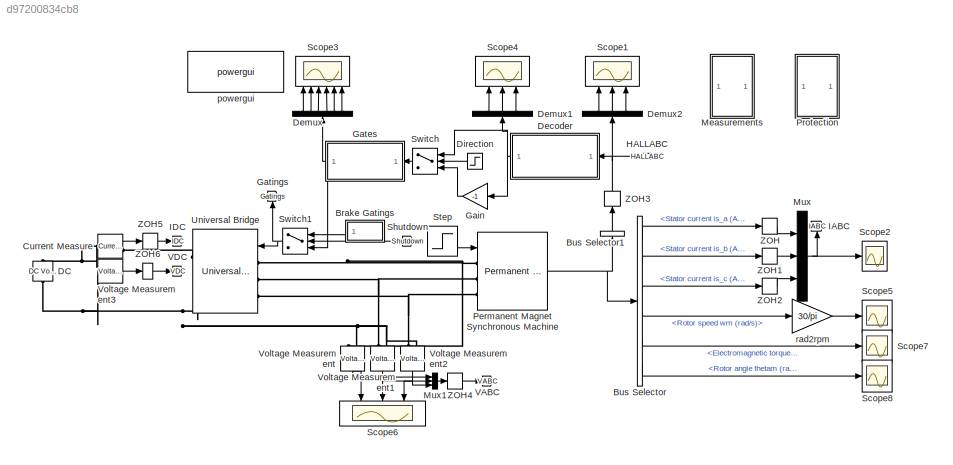
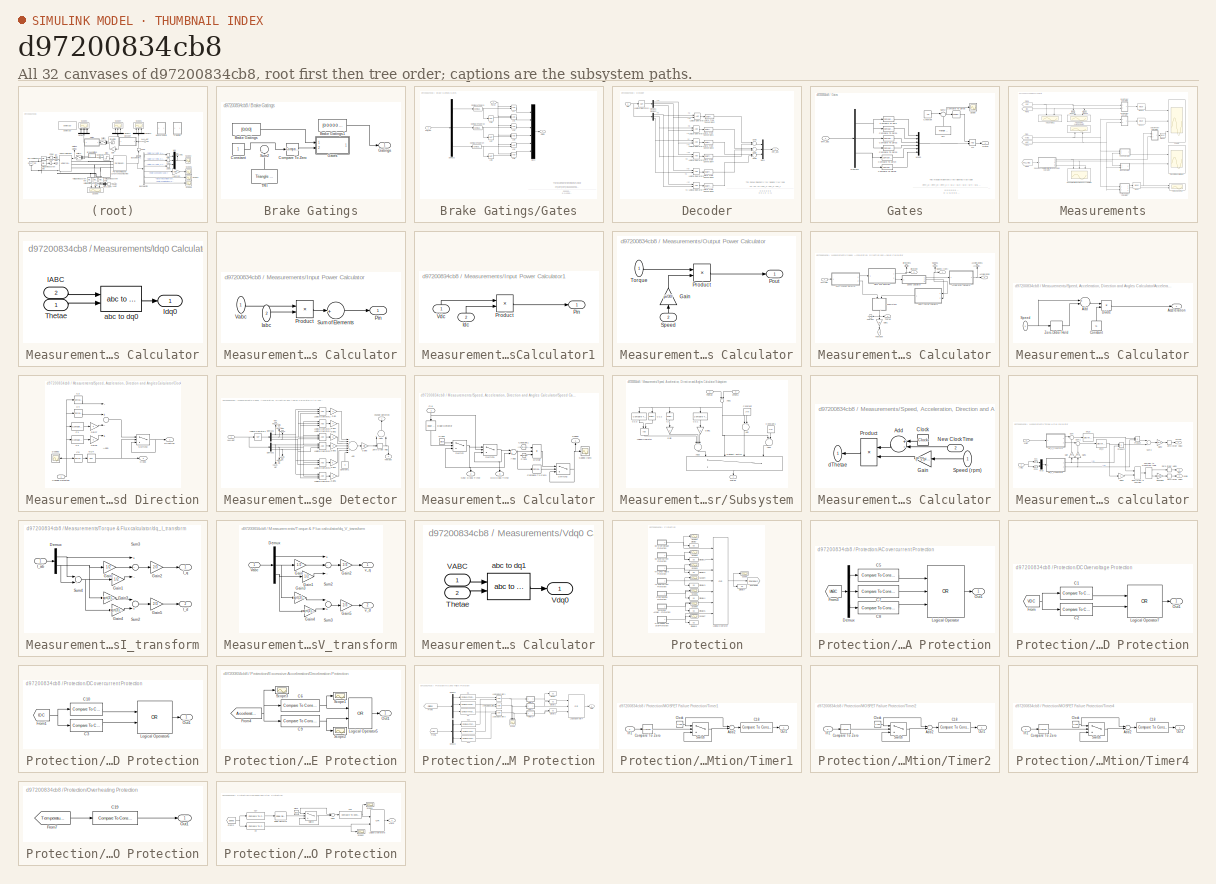
[diagram: thumbnail index - all 32 canvases of the model, root first then tree order]
MODEL slx_d97200834cb8
KIND model
BLOCK [SubSystem] Brake Gatings
  FunctionWithSeparateData = off
  MaskHideContents = off
  MinAlgLoopOccurrences = off
  Opaque = off
  Ports = [0, 1]
  PropExecContextOutsideSubsystem = off
  RTWSystemCode = Auto
  RequestExecContextInheritance = off
BLOCK [Constant] Brake Gatings/Brake Gatings
  Value = [0;0;0]
BLOCK [Constant] Brake Gatings/Brake Gatings1
  Value = [0 0 0 0 0 0]
BLOCK [Reference] Brake Gatings/Compare To Zero  REF=simulink/Logic and Bit
Operations/Compare
To Zero
  OutDataTypeStr = boolean
  Ports = [1, 1]
  SourceBlock = simulink/Logic and Bit\nOperations/Compare\nTo Zero
  SourceType = Compare To Zero
  ZeroCross = on
  relop = >=
BLOCK [Constant] Brake Gatings/Constant
BLOCK [SubSystem] Brake Gatings/Gates
  FunctionWithSeparateData = off
  MaskHideContents = off
  MinAlgLoopOccurrences = off
  Opaque = off
  Ports = [2, 1]
  PropExecContextOutsideSubsystem = off
  RTWSystemCode = Auto
  RequestExecContextInheritance = off
BLOCK [Reference] Brake Gatings/Gates/Compare To Zero  REF=simulink/Logic and Bit
Operations/Compare
To Zero
  OutDataTypeStr = boolean
  Ports = [1, 1]
  SourceBlock = simulink/Logic and Bit\nOperations/Compare\nTo Zero
  SourceType = Compare To Zero
  ZeroCross = off
  relop = >
BLOCK [Reference] Brake Gatings/Gates/Compare To Zero2  REF=simulink/Logic and Bit
Operations/Compare
To Zero
  OutDataTypeStr = boolean
  Ports = [1, 1]
  SourceBlock = simulink/Logic and Bit\nOperations/Compare\nTo Zero
  SourceType = Compare To Zero
  ZeroCross = off
  relop = >
BLOCK [Reference] Brake Gatings/Gates/Compare To Zero4  REF=simulink/Logic and Bit
Operations/Compare
To Zero
  OutDataTypeStr = boolean
  Ports = [1, 1]
  SourceBlock = simulink/Logic and Bit\nOperations/Compare\nTo Zero
  SourceType = Compare To Zero
  ZeroCross = off
  relop = >
BLOCK [Demux] Brake Gatings/Gates/Demux2
  DisplayOption = bar
  Outputs = 3
  Ports = [1, 3]
BLOCK [Outport] Brake Gatings/Gates/Gates
  IconDisplay = Port number
BLOCK [Logic] Brake Gatings/Gates/LO
  AllPortsSameDT = off
  OutDataTypeStr = boolean
  Ports = [2, 1]
BLOCK [Logic] Brake Gatings/Gates/LO1
  AllPortsSameDT = off
  OutDataTypeStr = boolean
  Ports = [2, 1]
BLOCK [Logic] Brake Gatings/Gates/LO2
  AllPortsSameDT = off
  OutDataTypeStr = boolean
  Ports = [2, 1]
BLOCK [Logic] Brake Gatings/Gates/LO3
  AllPortsSameDT = off
  OutDataTypeStr = boolean
  Ports = [2, 1]
BLOCK [Logic] Brake Gatings/Gates/LO4
  AllPortsSameDT = off
  OutDataTypeStr = boolean
  Ports = [2, 1]
BLOCK [Logic] Brake Gatings/Gates/LO5
  AllPortsSameDT = off
  OutDataTypeStr = boolean
  Ports = [2, 1]
BLOCK [Logic] Brake Gatings/Gates/LO6
  AllPortsSameDT = off
  Operator = NOT
  OutDataTypeStr = boolean
  Ports = [1, 1]
BLOCK [Logic] Brake Gatings/Gates/LO7
  AllPortsSameDT = off
  Operator = NOT
  OutDataTypeStr = boolean
  Ports = [1, 1]
BLOCK [Logic] Brake Gatings/Gates/LO8
  AllPortsSameDT = off
  Operator = NOT
  OutDataTypeStr = boolean
  Ports = [1, 1]
BLOCK [Mux] Brake Gatings/Gates/Mux3
  DisplayOption = bar
  Inputs = 6
  Ports = [6, 1]
BLOCK [Inport] Brake Gatings/Gates/PWM
  IconDisplay = Port number
  Port = 2
BLOCK [Inport] Brake Gatings/Gates/emf_abc 
  IconDisplay = Port number
BLOCK [Outport] Brake Gatings/Gatings
  IconDisplay = Port number
BLOCK [Sum] Brake Gatings/Sum2
  IconShape = round
  InputSameDT = off
  Inputs = |+-
  OutDataTypeStr = Inherit: Inherit via internal rule
  Ports = [2, 1]
  SaturateOnIntegerOverflow = off
BLOCK [Reference] Brake Gatings/TRI  REF=powerlib_meascontrol/Pulse & Signal
Generators/Triangle
Generator
  Freq = 1e4
  Phase = 0
  Ports = [0, 1]
  SourceBlock = powerlib_meascontrol/Pulse & Signal\nGenerators/Triangle\nGenerator
  SourceType = Triangle Generator
  Ts = 0
BLOCK [BusSelector] Bus Selector
  OutputSignals = Stator current is_a (A),Stator current is_b (A),Stator current is_c (A),Rotor speed wm (rad/s),Electromagnetic torque Te (N*m),Rotor angle thetam (rad)
  Ports = [1, 6]
BLOCK [BusSelector] Bus Selector1
  OutputAsBus = on
  OutputSignals = Hall effect signal h_a,Hall effect signal h_b,Hall effect signal h_c
  Ports = [1, 1]
BLOCK [Reference] Current Measure  REF=powerlib/Measurements/Current Measurement
  OutputType = Complex
  PSBequivalent = 0
  PhasorSimulation = off
  Ports = [0, 1, 0, 0, 0, 1, 1]
  SourceBlock = powerlib/Measurements/Current Measurement
  SourceType = Current Measurement
BLOCK [Reference] DC  REF=powerlib/Electrical
Sources/DC Voltage Source
  Amplitude = 48
  Measurements = None
  Ports = [0, 0, 0, 0, 0, 1, 1]
  SourceBlock = powerlib/Electrical\nSources/DC Voltage Source
  SourceType = DC Voltage Source
BLOCK [SubSystem] Decoder
  FunctionWithSeparateData = off
  MaskHideContents = off
  MinAlgLoopOccurrences = off
  Opaque = off
  Ports = [1, 1]
  PropExecContextOutsideSubsystem = off
  RTWSystemCode = Auto
  RequestExecContextInheritance = off
BLOCK [DataTypeConversion] Decoder/Data Type Conversion1
  RndMeth = Floor
  SaturateOnIntegerOverflow = off
BLOCK [DataTypeConversion] Decoder/Data Type Conversion2
  RndMeth = Floor
  SaturateOnIntegerOverflow = off
BLOCK [DataTypeConversion] Decoder/Data Type Conversion3
  RndMeth = Floor
  SaturateOnIntegerOverflow = off
BLOCK [DataTypeConversion] Decoder/Data Type Conversion4
  RndMeth = Floor
  SaturateOnIntegerOverflow = off
BLOCK [DataTypeConversion] Decoder/Data Type Conversion5
  RndMeth = Floor
  SaturateOnIntegerOverflow = off
BLOCK [DataTypeConversion] Decoder/Data Type Conversion6
  RndMeth = Floor
  SaturateOnIntegerOverflow = off
BLOCK [Demux] Decoder/Demux1
  DisplayOption = bar
  Outputs = 3
  Ports = [1, 3]
BLOCK [Demux] Decoder/Demux2
  DisplayOption = bar
  Outputs = 3
  Ports = [1, 3]
BLOCK [Inport] Decoder/Hall 
  IconDisplay = Port number
BLOCK [Logic] Decoder/Logical Operator1
  AllPortsSameDT = off
  Operator = NOT
  OutDataTypeStr = boolean
  Ports = [1, 1]
BLOCK [Logic] Decoder/Logical Operator2
  AllPortsSameDT = off
  OutDataTypeStr = boolean
  Ports = [2, 1]
BLOCK [Logic] Decoder/Logical Operator3
  AllPortsSameDT = off
  OutDataTypeStr = boolean
  Ports = [2, 1]
BLOCK [Logic] Decoder/Logical Operator4
  AllPortsSameDT = off
  OutDataTypeStr = boolean
  Ports = [2, 1]
BLOCK [Logic] Decoder/Logical Operator5
  AllPortsSameDT = off
  OutDataTypeStr = boolean
  Ports = [2, 1]
BLOCK [Logic] Decoder/Logical Operator6
  AllPortsSameDT = off
  OutDataTypeStr = boolean
  Ports = [2, 1]
BLOCK [Logic] Decoder/Logical Operator7
  AllPortsSameDT = off
  OutDataTypeStr = boolean
  Ports = [2, 1]
BLOCK [Mux] Decoder/Mux1
  DisplayOption = bar
  Inputs = 3
  Ports = [3, 1]
BLOCK [Sum] Decoder/Sum1
  InputSameDT = off
  Inputs = +-
  OutDataTypeStr = double
  Ports = [2, 1]
  SaturateOnIntegerOverflow = off
BLOCK [Sum] Decoder/Sum2
  InputSameDT = off
  Inputs = +-
  OutDataTypeStr = double
  Ports = [2, 1]
  SaturateOnIntegerOverflow = off
BLOCK [Sum] Decoder/Sum3
  InputSameDT = off
  Inputs = +-
  OutDataTypeStr = double
  Ports = [2, 1]
  SaturateOnIntegerOverflow = off
BLOCK [Outport] Decoder/emf_abc
  IconDisplay = Port number
BLOCK [Demux] Demux
  DisplayOption = bar
  Outputs = 6
  Ports = [1, 6]
BLOCK [Demux] Demux1
  DisplayOption = bar
  Outputs = 3
  Ports = [1, 3]
BLOCK [Demux] Demux2
  DisplayOption = bar
  Outputs = 3
  Ports = [1, 3]
BLOCK [Step] Direction
  After = -1
  Before = 1
  SampleTime = 0
  Time = .25
BLOCK [Gain] Gain
  Gain = -1
  OutDataTypeStr = Inherit: Inherit via internal rule
  ParamDataTypeStr = Inherit: Inherit via internal rule
  SaturateOnIntegerOverflow = off
BLOCK [SubSystem] Gates
  FunctionWithSeparateData = off
  MaskHideContents = off
  MinAlgLoopOccurrences = off
  Opaque = off
  Ports = [1, 1]
  PropExecContextOutsideSubsystem = off
  RTWSystemCode = Auto
  RequestExecContextInheritance = off
BLOCK [Reference] Gates/Compare To Zero  REF=simulink/Logic and Bit
Operations/Compare
To Zero
  OutDataTypeStr = boolean
  Ports = [1, 1]
  SourceBlock = simulink/Logic and Bit\nOperations/Compare\nTo Zero
  SourceType = Compare To Zero
  ZeroCross = off
  relop = >
BLOCK [Reference] Gates/Compare To Zero1  REF=simulink/Logic and Bit
Operations/Compare
To Zero
  OutDataTypeStr = boolean
  Ports = [1, 1]
  SourceBlock = simulink/Logic and Bit\nOperations/Compare\nTo Zero
  SourceType = Compare To Zero
  ZeroCross = off
  relop = <
BLOCK [Reference] Gates/Compare To Zero2  REF=simulink/Logic and Bit
Operations/Compare
To Zero
  OutDataTypeStr = boolean
  Ports = [1, 1]
  SourceBlock = simulink/Logic and Bit\nOperations/Compare\nTo Zero
  SourceType = Compare To Zero
  ZeroCross = off
  relop = >
BLOCK [Reference] Gates/Compare To Zero3  REF=simulink/Logic and Bit
Operations/Compare
To Zero
  OutDataTypeStr = boolean
  Ports = [1, 1]
  SourceBlock = simulink/Logic and Bit\nOperations/Compare\nTo Zero
  SourceType = Compare To Zero
  ZeroCross = off
  relop = <
BLOCK [Reference] Gates/Compare To Zero4  REF=simulink/Logic and Bit
Operations/Compare
To Zero
  OutDataTypeStr = boolean
  Ports = [1, 1]
  SourceBlock = simulink/Logic and Bit\nOperations/Compare\nTo Zero
  SourceType = Compare To Zero
  ZeroCross = off
  relop = >
BLOCK [Reference] Gates/Compare To Zero5  REF=simulink/Logic and Bit
Operations/Compare
To Zero
  OutDataTypeStr = boolean
  Ports = [1, 1]
  SourceBlock = simulink/Logic and Bit\nOperations/Compare\nTo Zero
  SourceType = Compare To Zero
  ZeroCross = off
  relop = <
BLOCK [Reference] Gates/Compare To Zero6  REF=simulink/Logic and Bit
Operations/Compare
To Zero
  OutDataTypeStr = boolean
  Ports = [1, 1]
  SourceBlock = simulink/Logic and Bit\nOperations/Compare\nTo Zero
  SourceType = Compare To Zero
  ZeroCross = on
  relop = >=
BLOCK [Constant] Gates/Constant
  Value = -0.9
BLOCK [Demux] Gates/Demux2
  DisplayOption = bar
  Outputs = 3
  Ports = [1, 3]
BLOCK [Outport] Gates/Gates
  IconDisplay = Port number
BLOCK [Logic] Gates/LO
  AllPortsSameDT = off
  OutDataTypeStr = boolean
  Ports = [2, 1]
BLOCK [Mux] Gates/Mux3
  DisplayOption = bar
  Inputs = 6
  Ports = [6, 1]
BLOCK [Scope] Gates/Scope
  DataFormat = StructureWithTime
  Floating = off
  NumInputPorts = 1
  Ports = [1]
  SampleTime = 0
  SaveName = ScopeData31
  ShowLegends = off
BLOCK [Sum] Gates/Sum2
  IconShape = round
  InputSameDT = off
  Inputs = |+-
  OutDataTypeStr = Inherit: Inherit via internal rule
  Ports = [2, 1]
  SaturateOnIntegerOverflow = off
BLOCK [Reference] Gates/TRI  REF=powerlib_meascontrol/Pulse & Signal
Generators/Triangle
Generator
  Freq = 1e3
  Phase = 0
  Ports = [0, 1]
  SourceBlock = powerlib_meascontrol/Pulse & Signal\nGenerators/Triangle\nGenerator
  SourceType = Triangle Generator
  Ts = 0
BLOCK [Inport] Gates/emf_abc 
  IconDisplay = Port number
BLOCK [Goto] Gatings
  GotoTag = Gatings
  TagVisibility = global
BLOCK [Goto] HALLABC
  GotoTag = HALLABC
  TagVisibility = global
BLOCK [Goto] IABC
  GotoTag = IABC
  TagVisibility = global
BLOCK [Goto] IDC
  GotoTag = IDC
  TagVisibility = global
BLOCK [SubSystem] Measurements
  FunctionWithSeparateData = off
  MaskHideContents = off
  MinAlgLoopOccurrences = off
  Opaque = off
  Ports = []
  PropExecContextOutsideSubsystem = off
  RTWSystemCode = Auto
  RequestExecContextInheritance = off
BLOCK [From] Measurements/From
  GotoTag = VABC
  TagVisibility = global
BLOCK [From] Measurements/From1
  GotoTag = IABC
  TagVisibility = global
BLOCK [From] Measurements/From2
  GotoTag = HALLABC
  TagVisibility = global
BLOCK [From] Measurements/From3
  GotoTag = IDC
  TagVisibility = global
BLOCK [From] Measurements/From4
  GotoTag = VDC
  TagVisibility = global
BLOCK [SubSystem] Measurements/Idq0 Calculator
  FunctionWithSeparateData = off
  MaskHideContents = off
  MinAlgLoopOccurrences = off
  Opaque = off
  Ports = [2, 1]
  PropExecContextOutsideSubsystem = off
  RTWSystemCode = Auto
  RequestExecContextInheritance = off
BLOCK [Inport] Measurements/Idq0 Calculator/IABC
  IconDisplay = Port number
  Port = 2
BLOCK [Outport] Measurements/Idq0 Calculator/Idq0
  IconDisplay = Port number
BLOCK [Inport] Measurements/Idq0 Calculator/Thetae
  IconDisplay = Port number
BLOCK [Reference] Measurements/Idq0 Calculator/abc to dq0  REF=powerlib_meascontrol/Transformations/abc to dq0
  Alignment = Aligned with phase A axis
  Ports = [2, 1]
  SourceBlock = powerlib_meascontrol/Transformations/abc to dq0
  SourceType = abc to dq0 Transformation
BLOCK [SubSystem] Measurements/Input Power Calculator
  FunctionWithSeparateData = off
  MaskHideContents = off
  MinAlgLoopOccurrences = off
  Opaque = off
  Ports = [2, 1]
  PropExecContextOutsideSubsystem = off
  RTWSystemCode = Auto
  RequestExecContextInheritance = off
BLOCK [Inport] Measurements/Input Power Calculator/Iabc
  IconDisplay = Port number
  Port = 2
BLOCK [Outport] Measurements/Input Power Calculator/Pin
  IconDisplay = Port number
BLOCK [Product] Measurements/Input Power Calculator/Product
  InputSameDT = off
  OutDataTypeStr = Inherit: Inherit via internal rule
  Ports = [2, 1]
  RndMeth = Floor
  SaturateOnIntegerOverflow = off
BLOCK [Sum] Measurements/Input Power Calculator/Sum of Elements
  InputSameDT = off
  Inputs = +
  OutDataTypeStr = Inherit: Inherit via internal rule
  Ports = [1, 1]
  SaturateOnIntegerOverflow = off
BLOCK [Inport] Measurements/Input Power Calculator/Vabc
  IconDisplay = Port number
BLOCK [SubSystem] Measurements/Input Power Calculator1
  FunctionWithSeparateData = off
  MaskHideContents = off
  MinAlgLoopOccurrences = off
  Opaque = off
  Ports = [2, 1]
  PropExecContextOutsideSubsystem = off
  RTWSystemCode = Auto
  RequestExecContextInheritance = off
BLOCK [Inport] Measurements/Input Power Calculator1/Idc
  IconDisplay = Port number
  Port = 2
BLOCK [Outport] Measurements/Input Power Calculator1/Pin
  IconDisplay = Port number
BLOCK [Product] Measurements/Input Power Calculator1/Product
  InputSameDT = off
  OutDataTypeStr = Inherit: Inherit via internal rule
  Ports = [2, 1]
  RndMeth = Floor
  SaturateOnIntegerOverflow = off
BLOCK [Inport] Measurements/Input Power Calculator1/Vdc
  IconDisplay = Port number
BLOCK [Reference] Measurements/Mean  REF=powerlib_meascontrol/Measurements/Mean
  Freq = 10
  Ports = [1, 1]
  SourceBlock = powerlib_meascontrol/Measurements/Mean
  SourceType = Mean
  Ts = 0
  Vinit = 0
BLOCK [Reference] Measurements/Mean1  REF=powerlib_meascontrol/Measurements/Mean
  Freq = 10
  Ports = [1, 1]
  SourceBlock = powerlib_meascontrol/Measurements/Mean
  SourceType = Mean
  Ts = 0
  Vinit = 0
BLOCK [Reference] Measurements/Mean2  REF=powerlib_meascontrol/Measurements/Mean
  Freq = 10
  Ports = [1, 1]
  SourceBlock = powerlib_meascontrol/Measurements/Mean
  SourceType = Mean
  Ts = 0
  Vinit = 0
BLOCK [Reference] Measurements/Mean3  REF=powerlib_meascontrol/Measurements/Mean
  Freq = 10
  Ports = [1, 1]
  SourceBlock = powerlib_meascontrol/Measurements/Mean
  SourceType = Mean
  Ts = 0
  Vinit = 0
BLOCK [Reference] Measurements/Mean4  REF=powerlib_meascontrol/Measurements/Mean
  Freq = 10
  Ports = [1, 1]
  SourceBlock = powerlib_meascontrol/Measurements/Mean
  SourceType = Mean
  Ts = 0
  Vinit = 0
BLOCK [Reference] Measurements/Mean5  REF=powerlib_meascontrol/Measurements/Mean
  Freq = 10
  Ports = [1, 1]
  SourceBlock = powerlib_meascontrol/Measurements/Mean
  SourceType = Mean
  Ts = 0
  Vinit = 0
BLOCK [SubSystem] Measurements/Output Power Calculator
  FunctionWithSeparateData = off
  MaskHideContents = off
  MinAlgLoopOccurrences = off
  Opaque = off
  Ports = [2, 1]
  PropExecContextOutsideSubsystem = off
  RTWSystemCode = Auto
  RequestExecContextInheritance = off
BLOCK [Gain] Measurements/Output Power Calculator/Gain
  Gain = pi/30
  OutDataTypeStr = Inherit: Inherit via internal rule
  ParamDataTypeStr = Inherit: Inherit via internal rule
  SaturateOnIntegerOverflow = off
BLOCK [Outport] Measurements/Output Power Calculator/Pout
  IconDisplay = Port number
BLOCK [Product] Measurements/Output Power Calculator/Product
  InputSameDT = off
  OutDataTypeStr = Inherit: Inherit via internal rule
  Ports = [2, 1]
  RndMeth = Floor
  SaturateOnIntegerOverflow = off
BLOCK [Inport] Measurements/Output Power Calculator/Speed
  IconDisplay = Port number
  Port = 2
BLOCK [Inport] Measurements/Output Power Calculator/Torque
  IconDisplay = Port number
BLOCK [Scope] Measurements/Powers
  DataFormat = StructureWithTime
  Floating = off
  LimitDataPoints = off
  NumInputPorts = 3
  Ports = [3]
  SampleTime = 0
  SaveName = ScopeData6
  ShowLegends = off
  TimeRange = 0.5
  YMax = 6000~6000~375
  YMin = 0~0~0
  ZoomMode = yonly
BLOCK [SubSystem] Measurements/Speed, Acceleration, Direction and Angles Calculator
  FunctionWithSeparateData = off
  MaskHideContents = off
  MinAlgLoopOccurrences = off
  Opaque = off
  Ports = [1, 5]
  PropExecContextOutsideSubsystem = off
  RTWSystemCode = Auto
  RequestExecContextInheritance = off
BLOCK [Outport] Measurements/Speed, Acceleration, Direction and Angles Calculator/Acceleration
  IconDisplay = Port number
  Port = 5
BLOCK [SubSystem] Measurements/Speed, Acceleration, Direction and Angles Calculator/Acceleration Calculator
  FunctionWithSeparateData = off
  MaskHideContents = off
  MinAlgLoopOccurrences = off
  Opaque = off
  Ports = [1, 1]
  PropExecContextOutsideSubsystem = off
  RTWSystemCode = Auto
  RequestExecContextInheritance = off
BLOCK [Outport] Measurements/Speed, Acceleration, Direction and Angles Calculator/Acceleration Calculator/Acceleration
  IconDisplay = Port number
BLOCK [Sum] Measurements/Speed, Acceleration, Direction and Angles Calculator/Acceleration Calculator/Add
  InputSameDT = off
  Inputs = +-
  OutDataTypeStr = Inherit: Inherit via internal rule
  Ports = [2, 1]
  SaturateOnIntegerOverflow = off
BLOCK [Constant] Measurements/Speed, Acceleration, Direction and Angles Calculator/Acceleration Calculator/Constant
  Value = Ts
BLOCK [Product] Measurements/Speed, Acceleration, Direction and Angles Calculator/Acceleration Calculator/Divide
  InputSameDT = off
  Inputs = */
  OutDataTypeStr = Inherit: Inherit via internal rule
  Ports = [2, 1]
  RndMeth = Floor
  SaturateOnIntegerOverflow = off
BLOCK [Inport] Measurements/Speed, Acceleration, Direction and Angles Calculator/Acceleration Calculator/Speed
  IconDisplay = Port number
BLOCK [ZeroOrderHold] Measurements/Speed, Acceleration, Direction and Angles Calculator/Acceleration Calculator/Zero-Order Hold
  SampleTime = Ts
BLOCK [Goto] Measurements/Speed, Acceleration, Direction and Angles Calculator/Acceleration1
  GotoTag = Acceleration
  TagVisibility = global
BLOCK [SubSystem] Measurements/Speed, Acceleration, Direction and Angles Calculator/Clock and Direction
  FunctionWithSeparateData = off
  MaskHideContents = off
  MinAlgLoopOccurrences = off
  Opaque = off
  Ports = [1, 2]
  PropExecContextOutsideSubsystem = off
  RTWSystemCode = Auto
  RequestExecContextInheritance = off
BLOCK [Sum] Measurements/Speed, Acceleration, Direction and Angles Calculator/Clock and Direction/Add3
  InputSameDT = off
  Inputs = -+-+
  OutDataTypeStr = double
  Ports = [4, 1]
  SaturateOnIntegerOverflow = off
BLOCK [Reference] Measurements/Speed, Acceleration, Direction and Angles Calculator/Clock and Direction/C1  REF=simulink/Logic and Bit
Operations/Compare
To Constant
  OutDataTypeStr = boolean
  Ports = [1, 1]
  SourceBlock = simulink/Logic and Bit\nOperations/Compare\nTo Constant
  SourceType = Compare To Constant
  ZeroCross = on
  const = 240*(pi/180)
  relop = >=
BLOCK [Reference] Measurements/Speed, Acceleration, Direction and Angles Calculator/Clock and Direction/C2  REF=simulink/Logic and Bit
Operations/Compare
To Constant
  OutDataTypeStr = boolean
  Ports = [1, 1]
  SourceBlock = simulink/Logic and Bit\nOperations/Compare\nTo Constant
  SourceType = Compare To Constant
  ZeroCross = on
  const = -240*(pi/180)
  relop = <=
BLOCK [Reference] Measurements/Speed, Acceleration, Direction and Angles Calculator/Clock and Direction/C3  REF=simulink/Logic and Bit
Operations/Compare
To Zero
  OutDataTypeStr = boolean
  Ports = [1, 1]
  SourceBlock = simulink/Logic and Bit\nOperations/Compare\nTo Zero
  SourceType = Compare To Zero
  ZeroCross = on
  relop = <
BLOCK [Reference] Measurements/Speed, Acceleration, Direction and Angles Calculator/Clock and Direction/C4  REF=simulink/Logic and Bit
Operations/Compare
To Zero
  OutDataTypeStr = boolean
  Ports = [1, 1]
  SourceBlock = simulink/Logic and Bit\nOperations/Compare\nTo Zero
  SourceType = Compare To Zero
  ZeroCross = on
  relop = >
BLOCK [Reference] Measurements/Speed, Acceleration, Direction and Angles Calculator/Clock and Direction/C5  REF=simulink/Logic and Bit
Operations/Compare
To Zero
  OutDataTypeStr = boolean
  Ports = [1, 1]
  SourceBlock = simulink/Logic and Bit\nOperations/Compare\nTo Zero
  SourceType = Compare To Zero
  ZeroCross = on
  relop = ==
BLOCK [Inport] Measurements/Speed, Acceleration, Direction and Angles Calculator/Clock and Direction/Change Detected
  IconDisplay = Port number
BLOCK [Outport] Measurements/Speed, Acceleration, Direction and Angles Calculator/Clock and Direction/Clock
  IconDisplay = Port number
  Port = 2
BLOCK [Outport] Measurements/Speed, Acceleration, Direction and Angles Calculator/Clock and Direction/Direction
  IconDisplay = Port number
BLOCK [Gain] Measurements/Speed, Acceleration, Direction and Angles Calculator/Clock and Direction/Gain7
  Gain = 2
  OutDataTypeStr = Inherit: Inherit via internal rule
  ParamDataTypeStr = Inherit: Inherit via internal rule
  SaturateOnIntegerOverflow = off
BLOCK [Gain] Measurements/Speed, Acceleration, Direction and Angles Calculator/Clock and Direction/Gain8
  Gain = 2
  OutDataTypeStr = Inherit: Inherit via internal rule
  ParamDataTypeStr = Inherit: Inherit via internal rule
  SaturateOnIntegerOverflow = off
BLOCK [Logic] Measurements/Speed, Acceleration, Direction and Angles Calculator/Clock and Direction/NOT
  AllPortsSameDT = off
  Operator = NOT
  OutDataTypeStr = boolean
  Ports = [1, 1]
BLOCK [Scope] Measurements/Speed, Acceleration, Direction and Angles Calculator/Clock and Direction/Scope2
  DataFormat = StructureWithTime
  Floating = off
  LimitDataPoints = off
  NumInputPorts = 1
  Ports = [1]
  SampleTime = 0
  SaveName = ScopeData11
  ShowLegends = off
  YMax = 7
  YMin = -7
  ZoomMode = xonly
BLOCK [Switch] Measurements/Speed, Acceleration, Direction and Angles Calculator/Clock and Direction/Switch2
  Criteria = u2 > Threshold
  InputSameDT = off
  SaturateOnIntegerOverflow = off
BLOCK [Outport] Measurements/Speed, Acceleration, Direction and Angles Calculator/Direction
  IconDisplay = Port number
  Port = 3
BLOCK [Goto] Measurements/Speed, Acceleration, Direction and Angles Calculator/Direction1
  GotoTag = Direction
  TagVisibility = global
BLOCK [Gain] Measurements/Speed, Acceleration, Direction and Angles Calculator/Gain1
  Gain = 1/P
  OutDataTypeStr = Inherit: Inherit via internal rule
  ParamDataTypeStr = Inherit: Inherit via internal rule
  SaturateOnIntegerOverflow = off
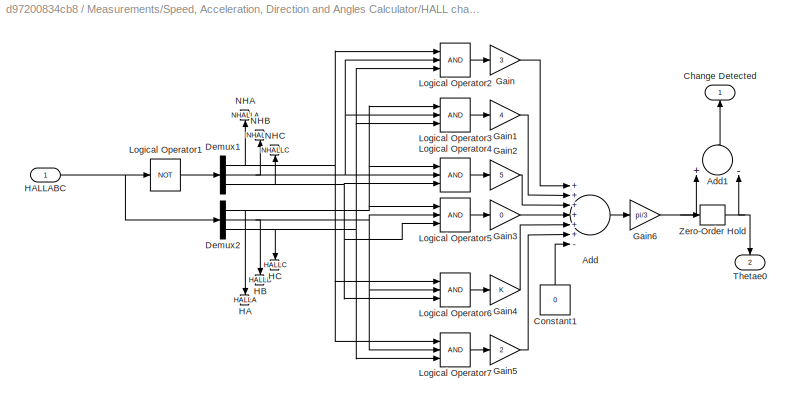
BLOCK [SubSystem] Measurements/Speed, Acceleration, Direction and Angles Calculator/HALL change Detector
  FunctionWithSeparateData = off
  MaskHideContents = off
  MinAlgLoopOccurrences = off
  Opaque = off
  Ports = [1, 2]
  PropExecContextOutsideSubsystem = off
  RTWSystemCode = Auto
  RequestExecContextInheritance = off
BLOCK [Sum] Measurements/Speed, Acceleration, Direction and Angles Calculator/HALL change Detector/Add
  InputSameDT = off
  Inputs = ++++++-
  OutDataTypeStr = Inherit: Inherit via internal rule
  Ports = [7, 1]
  SaturateOnIntegerOverflow = off
BLOCK [Sum] Measurements/Speed, Acceleration, Direction and Angles Calculator/HALL change Detector/Add1
  InputSameDT = off
  Inputs = +-
  OutDataTypeStr = Inherit: Inherit via internal rule
  Ports = [2, 1]
  SaturateOnIntegerOverflow = off
BLOCK [Outport] Measurements/Speed, Acceleration, Direction and Angles Calculator/HALL change Detector/Change Detected
  IconDisplay = Port number
BLOCK [Constant] Measurements/Speed, Acceleration, Direction and Angles Calculator/HALL change Detector/Constant1
  Value = 0
BLOCK [Demux] Measurements/Speed, Acceleration, Direction and Angles Calculator/HALL change Detector/Demux1
  DisplayOption = bar
  Outputs = 3
  Ports = [1, 3]
BLOCK [Demux] Measurements/Speed, Acceleration, Direction and Angles Calculator/HALL change Detector/Demux2
  DisplayOption = bar
  Outputs = 3
  Ports = [1, 3]
BLOCK [Gain] Measurements/Speed, Acceleration, Direction and Angles Calculator/HALL change Detector/Gain
  Gain = 3
  OutDataTypeStr = Inherit: Inherit via internal rule
  ParamDataTypeStr = Inherit: Inherit via internal rule
  SaturateOnIntegerOverflow = off
BLOCK [Gain] Measurements/Speed, Acceleration, Direction and Angles Calculator/HALL change Detector/Gain1
  Gain = 4
  OutDataTypeStr = Inherit: Inherit via internal rule
  ParamDataTypeStr = Inherit: Inherit via internal rule
  SaturateOnIntegerOverflow = off
BLOCK [Gain] Measurements/Speed, Acceleration, Direction and Angles Calculator/HALL change Detector/Gain2
  Gain = 5
  OutDataTypeStr = Inherit: Inherit via internal rule
  ParamDataTypeStr = Inherit: Inherit via internal rule
  SaturateOnIntegerOverflow = off
BLOCK [Gain] Measurements/Speed, Acceleration, Direction and Angles Calculator/HALL change Detector/Gain3
  Gain = 0
  OutDataTypeStr = Inherit: Inherit via internal rule
  ParamDataTypeStr = Inherit: Inherit via internal rule
  SaturateOnIntegerOverflow = off
BLOCK [Gain] Measurements/Speed, Acceleration, Direction and Angles Calculator/HALL change Detector/Gain4
  OutDataTypeStr = Inherit: Inherit via internal rule
  ParamDataTypeStr = Inherit: Inherit via internal rule
  SaturateOnIntegerOverflow = off
BLOCK [Gain] Measurements/Speed, Acceleration, Direction and Angles Calculator/HALL change Detector/Gain5
  Gain = 2
  OutDataTypeStr = Inherit: Inherit via internal rule
  ParamDataTypeStr = Inherit: Inherit via internal rule
  SaturateOnIntegerOverflow = off
BLOCK [Gain] Measurements/Speed, Acceleration, Direction and Angles Calculator/HALL change Detector/Gain6
  Gain = pi/3
  OutDataTypeStr = Inherit: Inherit via internal rule
  ParamDataTypeStr = double
  SaturateOnIntegerOverflow = off
BLOCK [Goto] Measurements/Speed, Acceleration, Direction and Angles Calculator/HALL change Detector/HA
  GotoTag = HALLA
  TagVisibility = global
BLOCK [Inport] Measurements/Speed, Acceleration, Direction and Angles Calculator/HALL change Detector/HALLABC
  IconDisplay = Port number
BLOCK [Goto] Measurements/Speed, Acceleration, Direction and Angles Calculator/HALL change Detector/HB
  GotoTag = HALLB
  TagVisibility = global
BLOCK [Goto] Measurements/Speed, Acceleration, Direction and Angles Calculator/HALL change Detector/HC
  GotoTag = HALLC
  TagVisibility = global
BLOCK [Logic] Measurements/Speed, Acceleration, Direction and Angles Calculator/HALL change Detector/Logical Operator1
  AllPortsSameDT = off
  Operator = NOT
  OutDataTypeStr = boolean
  Ports = [1, 1]
BLOCK [Logic] Measurements/Speed, Acceleration, Direction and Angles Calculator/HALL change Detector/Logical Operator2
  AllPortsSameDT = off
  Inputs = 3
  OutDataTypeStr = boolean
  Ports = [3, 1]
BLOCK [Logic] Measurements/Speed, Acceleration, Direction and Angles Calculator/HALL change Detector/Logical Operator3
  AllPortsSameDT = off
  Inputs = 3
  OutDataTypeStr = boolean
  Ports = [3, 1]
BLOCK [Logic] Measurements/Speed, Acceleration, Direction and Angles Calculator/HALL change Detector/Logical Operator4
  AllPortsSameDT = off
  Inputs = 3
  OutDataTypeStr = boolean
  Ports = [3, 1]
BLOCK [Logic] Measurements/Speed, Acceleration, Direction and Angles Calculator/HALL change Detector/Logical Operator5
  AllPortsSameDT = off
  Inputs = 3
  OutDataTypeStr = boolean
  Ports = [3, 1]
BLOCK [Logic] Measurements/Speed, Acceleration, Direction and Angles Calculator/HALL change Detector/Logical Operator6
  AllPortsSameDT = off
  Inputs = 3
  OutDataTypeStr = boolean
  Ports = [3, 1]
BLOCK [Logic] Measurements/Speed, Acceleration, Direction and Angles Calculator/HALL change Detector/Logical Operator7
  AllPortsSameDT = off
  Inputs = 3
  OutDataTypeStr = boolean
  Ports = [3, 1]
BLOCK [Goto] Measurements/Speed, Acceleration, Direction and Angles Calculator/HALL change Detector/NHA
  GotoTag = NHALLA
  TagVisibility = global
BLOCK [Goto] Measurements/Speed, Acceleration, Direction and Angles Calculator/HALL change Detector/NHB
  GotoTag = NHALLB
  TagVisibility = global
BLOCK [Goto] Measurements/Speed, Acceleration, Direction and Angles Calculator/HALL change Detector/NHC
  GotoTag = NHALLC
  TagVisibility = global
BLOCK [Outport] Measurements/Speed, Acceleration, Direction and Angles Calculator/HALL change Detector/Thetae0
  IconDisplay = Port number
  Port = 2
BLOCK [ZeroOrderHold] Measurements/Speed, Acceleration, Direction and Angles Calculator/HALL change Detector/Zero-Order Hold
  SampleTime = 1.01*Ts
BLOCK [Inport] Measurements/Speed, Acceleration, Direction and Angles Calculator/HALLABC
  IconDisplay = Port number
BLOCK [Outport] Measurements/Speed, Acceleration, Direction and Angles Calculator/Speed (rpm)
  IconDisplay = Port number
BLOCK [SubSystem] Measurements/Speed, Acceleration, Direction and Angles Calculator/Speed Calculator
  FunctionWithSeparateData = off
  MaskHideContents = off
  MinAlgLoopOccurrences = off
  Opaque = off
  Ports = [1, 3]
  PropExecContextOutsideSubsystem = off
  RTWSystemCode = Auto
  RequestExecContextInheritance = off
BLOCK [Sum] Measurements/Speed, Acceleration, Direction and Angles Calculator/Speed Calculator/Add2
  InputSameDT = off
  Inputs = -+
  OutDataTypeStr = Inherit: Inherit via internal rule
  Ports = [2, 1]
  SaturateOnIntegerOverflow = off
BLOCK [Inport] Measurements/Speed, Acceleration, Direction and Angles Calculator/Speed Calculator/Clk
  IconDisplay = Port number
BLOCK [Clock] Measurements/Speed, Acceleration, Direction and Angles Calculator/Speed Calculator/Clock
  Decimation = 1000000
BLOCK [Reference] Measurements/Speed, Acceleration, Direction and Angles Calculator/Speed Calculator/Compare To Zero  REF=simulink/Logic and Bit
Operations/Compare
To Zero
  OutDataTypeStr = boolean
  Ports = [1, 1]
  SourceBlock = simulink/Logic and Bit\nOperations/Compare\nTo Zero
  SourceType = Compare To Zero
  ZeroCross = on
  relop = >
BLOCK [Constant] Measurements/Speed, Acceleration, Direction and Angles Calculator/Speed Calculator/Constant1
  Value = ((pi/3)*60)/(P*(2*pi))
BLOCK [Product] Measurements/Speed, Acceleration, Direction and Angles Calculator/Speed Calculator/Divide
  InputSameDT = off
  Inputs = */*
  LockScale = on
  OutDataTypeStr = Inherit: Inherit via internal rule
  Ports = [3, 1]
  RndMeth = Floor
  SaturateOnIntegerOverflow = off
BLOCK [Reference] Measurements/Speed, Acceleration, Direction and Angles Calculator/Speed Calculator/Edge Detector  REF=powerlib_meascontrol/Logic/Edge Detector
  Ports = [1, 1]
  SourceBlock = powerlib_meascontrol/Logic/Edge Detector
  SourceType = Edge Detector
  Ts = -1
  ic = 0
  model = Falling
BLOCK [From] Measurements/Speed, Acceleration, Direction and Angles Calculator/Speed Calculator/From
  GotoTag = Direction
  TagVisibility = global
BLOCK [Outport] Measurements/Speed, Acceleration, Direction and Angles Calculator/Speed Calculator/New Clock Time
  IconDisplay = Port number
  Port = 2
BLOCK [Outport] Measurements/Speed, Acceleration, Direction and Angles Calculator/Speed Calculator/Old Clock Time
  IconDisplay = Port number
  Port = 3
BLOCK [Outport] Measurements/Speed, Acceleration, Direction and Angles Calculator/Speed Calculator/Speed
  IconDisplay = Port number
BLOCK [Scope] Measurements/Speed, Acceleration, Direction and Angles Calculator/Speed Calculator/Speed (rpm)
  DataFormat = StructureWithTime
  Floating = off
  LimitDataPoints = off
  NumInputPorts = 1
  Ports = [1]
  SampleTime = 0
  SaveName = ScopeData8
  ShowLegends = off
  YMax = 5000
  YMin = -5000
  ZoomMode = xonly
BLOCK [Switch] Measurements/Speed, Acceleration, Direction and Angles Calculator/Speed Calculator/Switch
  Criteria = u2 > Threshold
  InputSameDT = off
  SaturateOnIntegerOverflow = off
BLOCK [Switch] Measurements/Speed, Acceleration, Direction and Angles Calculator/Speed Calculator/Switch1
  Criteria = u2 > Threshold
  InputSameDT = off
  SaturateOnIntegerOverflow = off
BLOCK [Switch] Measurements/Speed, Acceleration, Direction and Angles Calculator/Speed Calculator/Switch2
  Criteria = u2 > Threshold
  InputSameDT = off
  SaturateOnIntegerOverflow = off
BLOCK [Goto] Measurements/Speed, Acceleration, Direction and Angles Calculator/Speed1
  GotoTag = Speed
  TagVisibility = global
BLOCK [SubSystem] Measurements/Speed, Acceleration, Direction and Angles Calculator/Subsystem
  FunctionWithSeparateData = off
  MaskHideContents = off
  MinAlgLoopOccurrences = off
  Opaque = off
  Ports = [2, 1]
  PropExecContextOutsideSubsystem = off
  RTWSystemCode = Auto
  RequestExecContextInheritance = off
BLOCK [Sum] Measurements/Speed, Acceleration, Direction and Angles Calculator/Subsystem/Add
  InputSameDT = off
  OutDataTypeStr = Inherit: Inherit via internal rule
  Ports = [2, 1]
  SaturateOnIntegerOverflow = off
BLOCK [Sum] Measurements/Speed, Acceleration, Direction and Angles Calculator/Subsystem/Add1
  InputSameDT = off
  OutDataTypeStr = Inherit: Inherit via internal rule
  Ports = [2, 1]
  SaturateOnIntegerOverflow = off
BLOCK [Sum] Measurements/Speed, Acceleration, Direction and Angles Calculator/Subsystem/Add2
  InputSameDT = off
  Inputs = +-
  OutDataTypeStr = Inherit: Inherit via internal rule
  Ports = [2, 1]
  SaturateOnIntegerOverflow = off
BLOCK [Sum] Measurements/Speed, Acceleration, Direction and Angles Calculator/Subsystem/Add3
  InputSameDT = off
  Inputs = +++
  OutDataTypeStr = Inherit: Inherit via internal rule
  Ports = [3, 1]
  SaturateOnIntegerOverflow = off
BLOCK [Reference] Measurements/Speed, Acceleration, Direction and Angles Calculator/Subsystem/CC  REF=simulink/Logic and Bit
Operations/Compare
To Constant
  OutDataTypeStr = boolean
  Ports = [1, 1]
  SourceBlock = simulink/Logic and Bit\nOperations/Compare\nTo Constant
  SourceType = Compare To Constant
  ZeroCross = on
  const = 0
  relop = <
BLOCK [Reference] Measurements/Speed, Acceleration, Direction and Angles Calculator/Subsystem/CC1  REF=simulink/Logic and Bit
Operations/Compare
To Constant
  OutDataTypeStr = boolean
  Ports = [1, 1]
  SourceBlock = simulink/Logic and Bit\nOperations/Compare\nTo Constant
  SourceType = Compare To Constant
  ZeroCross = on
  const = 2*pi
  relop = >
BLOCK [Reference] Measurements/Speed, Acceleration, Direction and Angles Calculator/Subsystem/CC2  REF=simulink/Logic and Bit
Operations/Compare
To Constant
  OutDataTypeStr = boolean
  Ports = [1, 1]
  SourceBlock = simulink/Logic and Bit\nOperations/Compare\nTo Constant
  SourceType = Compare To Constant
  ZeroCross = on
  const = 0
  relop = >=
BLOCK [Reference] Measurements/Speed, Acceleration, Direction and Angles Calculator/Subsystem/CC3  REF=simulink/Logic and Bit
Operations/Compare
To Constant
  OutDataTypeStr = boolean
  Ports = [1, 1]
  SourceBlock = simulink/Logic and Bit\nOperations/Compare\nTo Constant
  SourceType = Compare To Constant
  ZeroCross = on
  const = 2*pi
  relop = <=
BLOCK [Constant] Measurements/Speed, Acceleration, Direction and Angles Calculator/Subsystem/Constant
  Value = 2*pi
BLOCK [Constant] Measurements/Speed, Acceleration, Direction and Angles Calculator/Subsystem/Constant1
  Value = 2*pi
BLOCK [Gain] Measurements/Speed, Acceleration, Direction and Angles Calculator/Subsystem/Gain
  Gain = 2
  OutDataTypeStr = Inherit: Inherit via internal rule
  ParamDataTypeStr = Inherit: Inherit via internal rule
  SaturateOnIntegerOverflow = off
BLOCK [Gain] Measurements/Speed, Acceleration, Direction and Angles Calculator/Subsystem/Gain1
  Gain = 3
  OutDataTypeStr = Inherit: Inherit via internal rule
  ParamDataTypeStr = Inherit: Inherit via internal rule
  SaturateOnIntegerOverflow = off
BLOCK [Logic] Measurements/Speed, Acceleration, Direction and Angles Calculator/Subsystem/Logical Operator
  AllPortsSameDT = off
  OutDataTypeStr = boolean
  Ports = [2, 1]
BLOCK [MultiPortSwitch] Measurements/Speed, Acceleration, Direction and Angles Calculator/Subsystem/Multiport Switch
  InputSameDT = off
  Ports = [4, 1]
  SaturateOnIntegerOverflow = off
BLOCK [Inport] Measurements/Speed, Acceleration, Direction and Angles Calculator/Subsystem/Theta0
  IconDisplay = Port number
BLOCK [Outport] Measurements/Speed, Acceleration, Direction and Angles Calculator/Subsystem/Thetae
  IconDisplay = Port number
BLOCK [Inport] Measurements/Speed, Acceleration, Direction and Angles Calculator/Subsystem/dTheta
  IconDisplay = Port number
  Port = 2
BLOCK [Outport] Measurements/Speed, Acceleration, Direction and Angles Calculator/Thetae
  IconDisplay = Port number
  Port = 2
BLOCK [Goto] Measurements/Speed, Acceleration, Direction and Angles Calculator/Thetae1
  GotoTag = Thetae
  TagVisibility = global
BLOCK [Outport] Measurements/Speed, Acceleration, Direction and Angles Calculator/Thetaem
  IconDisplay = Port number
  Port = 4
BLOCK [SubSystem] Measurements/Speed, Acceleration, Direction and Angles Calculator/delta Thetae Calculator
  FunctionWithSeparateData = off
  MaskHideContents = off
  MinAlgLoopOccurrences = off
  Opaque = off
  Ports = [2, 1]
  PropExecContextOutsideSubsystem = off
  RTWSystemCode = Auto
  RequestExecContextInheritance = off
BLOCK [Sum] Measurements/Speed, Acceleration, Direction and Angles Calculator/delta Thetae Calculator/Add
  InputSameDT = off
  Inputs = +-
  OutDataTypeStr = Inherit: Inherit via internal rule
  Ports = [2, 1]
  SaturateOnIntegerOverflow = off
BLOCK [Clock] Measurements/Speed, Acceleration, Direction and Angles Calculator/delta Thetae Calculator/Clock
  Decimation = 1000000
BLOCK [Gain] Measurements/Speed, Acceleration, Direction and Angles Calculator/delta Thetae Calculator/Gain
  Gain = (P*2*pi)/60
  OutDataTypeStr = Inherit: Inherit via internal rule
  ParamDataTypeStr = Inherit: Inherit via internal rule
  SaturateOnIntegerOverflow = off
BLOCK [Inport] Measurements/Speed, Acceleration, Direction and Angles Calculator/delta Thetae Calculator/New Clock Time
  IconDisplay = Port number
  Port = 2
BLOCK [Product] Measurements/Speed, Acceleration, Direction and Angles Calculator/delta Thetae Calculator/Product
  InputSameDT = off
  OutDataTypeStr = Inherit: Inherit via internal rule
  Ports = [2, 1]
  RndMeth = Floor
  SaturateOnIntegerOverflow = off
BLOCK [Inport] Measurements/Speed, Acceleration, Direction and Angles Calculator/delta Thetae Calculator/Speed (rpm)
  IconDisplay = Port number
BLOCK [Outport] Measurements/Speed, Acceleration, Direction and Angles Calculator/delta Thetae Calculator/dThetae
  IconDisplay = Port number
BLOCK [Scope] Measurements/Speed, Electrical Angle and Acceleration
  DataFormat = StructureWithTime
  Floating = off
  LimitDataPoints = off
  NumInputPorts = 3
  Ports = [3]
  SampleTime = 0
  SaveName = ScopeData12
  ShowLegends = off
  YMax = 8000~7~2
  YMin = -10~-7~-2
  ZoomMode = yonly
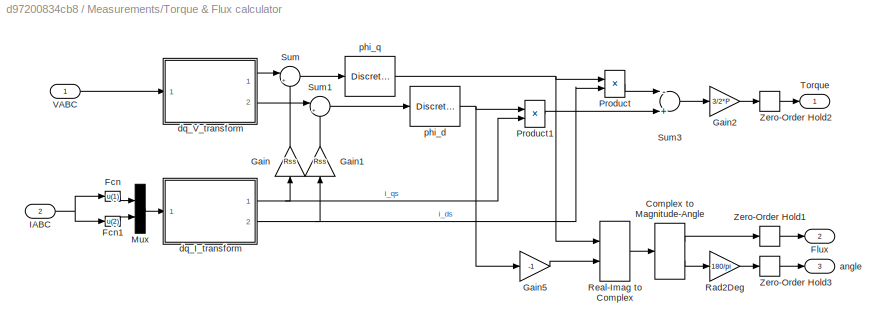
BLOCK [SubSystem] Measurements/Torque & Flux calculator
  AncestorBlock = electricdrivelib/AC drives/DTC Induction Motor Drive/DTC/Torque & Flux calculator
  FunctionWithSeparateData = off
  MaskHideContents = off
  MinAlgLoopOccurrences = off
  Opaque = off
  Ports = [2, 3]
  PropExecContextOutsideSubsystem = off
  RTWSystemCode = Auto
  RequestExecContextInheritance = off
BLOCK [ComplexToMagnitudeAngle] Measurements/Torque & Flux calculator/Complex to Magnitude-Angle
  Ports = [1, 2]
BLOCK [Fcn] Measurements/Torque & Flux calculator/Fcn
  Expr = u(1)
BLOCK [Fcn] Measurements/Torque & Flux calculator/Fcn1
  Expr = u(2)
BLOCK [Outport] Measurements/Torque & Flux calculator/Flux
  IconDisplay = Port number
  Port = 2
BLOCK [Gain] Measurements/Torque & Flux calculator/Gain
  Gain = Rss
BLOCK [Gain] Measurements/Torque & Flux calculator/Gain1
  Gain = Rss
BLOCK [Gain] Measurements/Torque & Flux calculator/Gain2
  Gain = 3/2*P
BLOCK [Gain] Measurements/Torque & Flux calculator/Gain5
  Gain = -1
BLOCK [Inport] Measurements/Torque & Flux calculator/IABC
  IconDisplay = Port number
  Port = 2
BLOCK [Mux] Measurements/Torque & Flux calculator/Mux
  DisplayOption = bar
  Inputs = 2
  Ports = [2, 1]
BLOCK [Product] Measurements/Torque & Flux calculator/Product
  InputSameDT = off
  Ports = [2, 1]
  RndMeth = Floor
BLOCK [Product] Measurements/Torque & Flux calculator/Product1
  InputSameDT = off
  Ports = [2, 1]
  RndMeth = Floor
BLOCK [Gain] Measurements/Torque & Flux calculator/Rad2Deg
  Gain = 180/pi
BLOCK [RealImagToComplex] Measurements/Torque & Flux calculator/Real-Imag to Complex
  Ports = [2, 1]
BLOCK [Sum] Measurements/Torque & Flux calculator/Sum
  IconShape = round
  InputSameDT = off
  Inputs = |+-
  OutDataTypeStr = Inherit: Inherit via internal rule
  Ports = [2, 1]
BLOCK [Sum] Measurements/Torque & Flux calculator/Sum1
  IconShape = round
  InputSameDT = off
  Inputs = |+-
  OutDataTypeStr = Inherit: Inherit via internal rule
  Ports = [2, 1]
BLOCK [Sum] Measurements/Torque & Flux calculator/Sum3
  InputSameDT = off
  Inputs = -+
  OutDataTypeStr = Inherit: Inherit via internal rule
  Ports = [2, 1]
BLOCK [Outport] Measurements/Torque & Flux calculator/Torque
  IconDisplay = Port number
BLOCK [Inport] Measurements/Torque & Flux calculator/VABC
  IconDisplay = Port number
BLOCK [ZeroOrderHold] Measurements/Torque & Flux calculator/Zero-Order Hold1
  SampleTime = Ts
BLOCK [ZeroOrderHold] Measurements/Torque & Flux calculator/Zero-Order Hold2
  SampleTime = Ts
BLOCK [ZeroOrderHold] Measurements/Torque & Flux calculator/Zero-Order Hold3
  SampleTime = Ts
BLOCK [Outport] Measurements/Torque & Flux calculator/angle
  IconDisplay = Port number
  Port = 3
BLOCK [SubSystem] Measurements/Torque & Flux calculator/dq_I_transform
  FunctionWithSeparateData = off
  MaskHideContents = off
  MinAlgLoopOccurrences = off
  Opaque = off
  Ports = [1, 2]
  PropExecContextOutsideSubsystem = off
  RTWSystemCode = Auto
  RequestExecContextInheritance = off
BLOCK [Demux] Measurements/Torque & Flux calculator/dq_I_transform/Demux
  Outputs = 2
  Ports = [1, 2]
BLOCK [Gain] Measurements/Torque & Flux calculator/dq_I_transform/Gain
  Gain = 1/2
BLOCK [Gain] Measurements/Torque & Flux calculator/dq_I_transform/Gain1
  Gain = 1/2
BLOCK [Gain] Measurements/Torque & Flux calculator/dq_I_transform/Gain2
  Gain = 2/3
BLOCK [Gain] Measurements/Torque & Flux calculator/dq_I_transform/Gain3
  Gain = sqrt(3)/2
BLOCK [Gain] Measurements/Torque & Flux calculator/dq_I_transform/Gain4
  Gain = sqrt(3)/2
BLOCK [Gain] Measurements/Torque & Flux calculator/dq_I_transform/Gain5
  Gain = 2/3
BLOCK [Inport] Measurements/Torque & Flux calculator/dq_I_transform/I_ab
  IconDisplay = Port number
BLOCK [Outport] Measurements/Torque & Flux calculator/dq_I_transform/I_d
  IconDisplay = Port number
  Port = 2
BLOCK [Outport] Measurements/Torque & Flux calculator/dq_I_transform/I_q
  IconDisplay = Port number
BLOCK [Sum] Measurements/Torque & Flux calculator/dq_I_transform/Sum2
  Inputs = -+
  Ports = [2, 1]
BLOCK [Sum] Measurements/Torque & Flux calculator/dq_I_transform/Sum3
  Inputs = +--
  Ports = [3, 1]
BLOCK [Sum] Measurements/Torque & Flux calculator/dq_I_transform/Sum4
  Inputs = --
  Ports = [2, 1]
BLOCK [SubSystem] Measurements/Torque & Flux calculator/dq_V_transform
  FunctionWithSeparateData = off
  MaskHideContents = off
  MinAlgLoopOccurrences = off
  Opaque = off
  Ports = [1, 2]
  PropExecContextOutsideSubsystem = off
  RTWSystemCode = Auto
  RequestExecContextInheritance = off
BLOCK [Demux] Measurements/Torque & Flux calculator/dq_V_transform/Demux
  Outputs = 3
  Ports = [1, 3]
BLOCK [Gain] Measurements/Torque & Flux calculator/dq_V_transform/Gain
  Gain = 1/2
BLOCK [Gain] Measurements/Torque & Flux calculator/dq_V_transform/Gain1
  Gain = 1/2
BLOCK [Gain] Measurements/Torque & Flux calculator/dq_V_transform/Gain2
  Gain = 2/3
BLOCK [Gain] Measurements/Torque & Flux calculator/dq_V_transform/Gain3
  Gain = sqrt(3)/2
BLOCK [Gain] Measurements/Torque & Flux calculator/dq_V_transform/Gain4
  Gain = sqrt(3)/2
BLOCK [Gain] Measurements/Torque & Flux calculator/dq_V_transform/Gain5
  Gain = 2/3
BLOCK [Sum] Measurements/Torque & Flux calculator/dq_V_transform/Sum2
  Inputs = +--
  Ports = [3, 1]
BLOCK [Sum] Measurements/Torque & Flux calculator/dq_V_transform/Sum3
  Inputs = -+
  Ports = [2, 1]
BLOCK [Inport] Measurements/Torque & Flux calculator/dq_V_transform/Vabc
  IconDisplay = Port number
BLOCK [Outport] Measurements/Torque & Flux calculator/dq_V_transform/v_d
  IconDisplay = Port number
  Port = 2
BLOCK [Outport] Measurements/Torque & Flux calculator/dq_V_transform/v_q
  IconDisplay = Port number
BLOCK [DiscreteIntegrator] Measurements/Torque & Flux calculator/phi_d
  ICPrevOutput = DiscIntNeverNeededParam
  ICPrevScaledInput = DiscIntNeverNeededParam
  IntegratorMethod = Integration: Trapezoidal
  Ports = [1, 1]
  SampleTime = Ts
BLOCK [DiscreteIntegrator] Measurements/Torque & Flux calculator/phi_q
  ICPrevOutput = DiscIntNeverNeededParam
  ICPrevScaledInput = DiscIntNeverNeededParam
  IntegratorMethod = Integration: Trapezoidal
  Ports = [1, 1]
  SampleTime = Ts
BLOCK [Scope] Measurements/Torque and Flux
  DataFormat = StructureWithTime
  Floating = off
  LimitDataPoints = off
  NumInputPorts = 2
  Ports = [2]
  SampleTime = 0
  SaveName = ScopeData10
  ShowLegends = off
  YMax = 20~0.1
  YMin = 0~0
BLOCK [Scope] Measurements/Transformed Variables
  DataFormat = StructureWithTime
  Floating = off
  LimitDataPoints = off
  NumInputPorts = 2
  Ports = [2]
  SampleTime = 0
  SaveName = ScopeData7
  ShowLegends = off
  YMax = 35~800
  YMin = -35~-800
BLOCK [Scope] Measurements/VABC and IABC
  DataFormat = StructureWithTime
  Floating = off
  LimitDataPoints = off
  NumInputPorts = 2
  Ports = [2]
  SampleTime = 0
  SaveName = ScopeData14
  ShowLegends = off
  YMax = 50~200
  YMin = -5~-200
  ZoomMode = yonly
BLOCK [Scope] Measurements/VDC and IDC
  DataFormat = StructureWithTime
  Floating = off
  LimitDataPoints = off
  NumInputPorts = 2
  Ports = [2]
  SampleTime = 0
  SaveName = ScopeData15
  ShowLegends = off
  YMax = 50.4~100
  YMin = 45.6~0
  ZoomMode = yonly
BLOCK [Scope] Measurements/VDC and IDC1
  DataFormat = StructureWithTime
  Floating = off
  LimitDataPoints = off
  NumInputPorts = 2
  Ports = [2]
  SampleTime = 0
  SaveName = ScopeData16
  ShowLegends = off
  YMax = 50.4~100
  YMin = 45.6~0
  ZoomMode = yonly
BLOCK [SubSystem] Measurements/Vdq0 Calculator
  FunctionWithSeparateData = off
  MaskHideContents = off
  MinAlgLoopOccurrences = off
  Opaque = off
  Ports = [2, 1]
  PropExecContextOutsideSubsystem = off
  RTWSystemCode = Auto
  RequestExecContextInheritance = off
BLOCK [Inport] Measurements/Vdq0 Calculator/Thetae
  IconDisplay = Port number
  Port = 2
BLOCK [Inport] Measurements/Vdq0 Calculator/VABC
  IconDisplay = Port number
BLOCK [Outport] Measurements/Vdq0 Calculator/Vdq0
  IconDisplay = Port number
BLOCK [Reference] Measurements/Vdq0 Calculator/abc to dq1  REF=powerlib_meascontrol/Transformations/abc to dq0
  Alignment = Aligned with phase A axis
  Ports = [2, 1]
  SourceBlock = powerlib_meascontrol/Transformations/abc to dq0
  SourceType = abc to dq0 Transformation
BLOCK [Mux] Mux
  DisplayOption = bar
  Inputs = 3
  Ports = [3, 1]
BLOCK [Mux] Mux1
  DisplayOption = bar
  Inputs = 3
  Ports = [3, 1]
BLOCK [Reference] Permanent Magnet Synchronous Machine  REF=powerlib/Machines/Permanent Magnet
Synchronous Machine
  Flat = 120
  Flux = 0.0125
  FluxDistribution = Trapezoidal
  Inductance = 1e-4
  InitialConditions = [(0)*(pi/30),0, 0,0]
  InitialConditions5ph = [0 0 0 0 0 0]
  La = 0.000835
  MachineConstant = Torque Constant (N.m / A_peak)
  Mechanical = [ 1e-3, 1e-7 4]
  MechanicalLoad = Torque Tm
  NbPhases = 3
  PolePairs = 4
  Ports = [1, 1, 0, 0, 0, 3]
  PresetModel = No
  RefAngle = Aligned with phase A axis (original Park)
  Resistance = 0.01
  RotorType = Round
  ShowDetailedParameters = on
  SourceBlock = powerlib/Machines/Permanent Magnet\nSynchronous Machine
  SourceType = Permanent Magnet Synchronous Machine
  TorqueCst = 0.1
  TsBlock = -1
  TsPowergui = 0
  VoltageCst = 10.472
  dqInductances = [8.5e-3,8.5e-3]
BLOCK [SubSystem] Protection
  FunctionWithSeparateData = off
  MaskHideContents = off
  MinAlgLoopOccurrences = off
  Opaque = off
  Ports = []
  PropExecContextOutsideSubsystem = off
  RTWSystemCode = Auto
  RequestExecContextInheritance = off
BLOCK [SubSystem] Protection/AC overcurrent Protection
  FunctionWithSeparateData = off
  MaskHideContents = off
  MinAlgLoopOccurrences = off
  Opaque = off
  Ports = [0, 1]
  PropExecContextOutsideSubsystem = off
  RTWSystemCode = Auto
  RequestExecContextInheritance = off
BLOCK [Reference] Protection/AC overcurrent Protection/C5  REF=simulink/Logic and Bit
Operations/Compare
To Constant
  OutDataTypeStr = boolean
  Ports = [1, 1]
  SourceBlock = simulink/Logic and Bit\nOperations/Compare\nTo Constant
  SourceType = Compare To Constant
  ZeroCross = on
  const = Iphasepeakmax
  relop = >=
BLOCK [Reference] Protection/AC overcurrent Protection/C7  REF=simulink/Logic and Bit
Operations/Compare
To Constant
  OutDataTypeStr = boolean
  Ports = [1, 1]
  SourceBlock = simulink/Logic and Bit\nOperations/Compare\nTo Constant
  SourceType = Compare To Constant
  ZeroCross = on
  const = Iphasepeakmax
  relop = >=
BLOCK [Reference] Protection/AC overcurrent Protection/C8  REF=simulink/Logic and Bit
Operations/Compare
To Constant
  OutDataTypeStr = boolean
  Ports = [1, 1]
  SourceBlock = simulink/Logic and Bit\nOperations/Compare\nTo Constant
  SourceType = Compare To Constant
  ZeroCross = on
  const = Iphasepeakmax
  relop = >=
BLOCK [Demux] Protection/AC overcurrent Protection/Demux
  DisplayOption = bar
  Outputs = 3
  Ports = [1, 3]
BLOCK [From] Protection/AC overcurrent Protection/From3
  GotoTag = IABC
  TagVisibility = global
BLOCK [Logic] Protection/AC overcurrent Protection/Logical Operator
  AllPortsSameDT = off
  Inputs = 3
  Operator = OR
  OutDataTypeStr = boolean
  Ports = [3, 1]
BLOCK [Outport] Protection/AC overcurrent Protection/Out1
  IconDisplay = Port number
BLOCK [SubSystem] Protection/DC Overvoltage Protection
  FunctionWithSeparateData = off
  MaskHideContents = off
  MinAlgLoopOccurrences = off
  Opaque = off
  Ports = [0, 1]
  PropExecContextOutsideSubsystem = off
  RTWSystemCode = Auto
  RequestExecContextInheritance = off
BLOCK [Reference] Protection/DC Overvoltage Protection/C1  REF=simulink/Logic and Bit
Operations/Compare
To Constant
  OutDataTypeStr = boolean
  Ports = [1, 1]
  SourceBlock = simulink/Logic and Bit\nOperations/Compare\nTo Constant
  SourceType = Compare To Constant
  ZeroCross = on
  const = VDCmin
  relop = <=
BLOCK [Reference] Protection/DC Overvoltage Protection/C2  REF=simulink/Logic and Bit
Operations/Compare
To Constant
  OutDataTypeStr = boolean
  Ports = [1, 1]
  SourceBlock = simulink/Logic and Bit\nOperations/Compare\nTo Constant
  SourceType = Compare To Constant
  ZeroCross = on
  const = VDCmax
  relop = >=
BLOCK [From] Protection/DC Overvoltage Protection/From
  GotoTag = VDC
  TagVisibility = global
BLOCK [Logic] Protection/DC Overvoltage Protection/Logical Operator7
  AllPortsSameDT = off
  Operator = OR
  OutDataTypeStr = boolean
  Ports = [2, 1]
BLOCK [Outport] Protection/DC Overvoltage Protection/Out1
  IconDisplay = Port number
BLOCK [SubSystem] Protection/DC overcurrent Protection
  FunctionWithSeparateData = off
  MaskHideContents = off
  MinAlgLoopOccurrences = off
  Opaque = off
  Ports = [0, 1]
  PropExecContextOutsideSubsystem = off
  RTWSystemCode = Auto
  RequestExecContextInheritance = off
BLOCK [Reference] Protection/DC overcurrent Protection/C10  REF=simulink/Logic and Bit
Operations/Compare
To Constant
  OutDataTypeStr = boolean
  Ports = [1, 1]
  SourceBlock = simulink/Logic and Bit\nOperations/Compare\nTo Constant
  SourceType = Compare To Constant
  ZeroCross = on
  const = IDCmin
  relop = <=
BLOCK [Reference] Protection/DC overcurrent Protection/C3  REF=simulink/Logic and Bit
Operations/Compare
To Constant
  OutDataTypeStr = boolean
  Ports = [1, 1]
  SourceBlock = simulink/Logic and Bit\nOperations/Compare\nTo Constant
  SourceType = Compare To Constant
  ZeroCross = on
  const = IDCmax
  relop = >=
BLOCK [From] Protection/DC overcurrent Protection/From1
  GotoTag = IDC
  TagVisibility = global
BLOCK [Logic] Protection/DC overcurrent Protection/Logical Operator6
  AllPortsSameDT = off
  Operator = OR
  OutDataTypeStr = boolean
  Ports = [2, 1]
BLOCK [Outport] Protection/DC overcurrent Protection/Out1
  IconDisplay = Port number
BLOCK [Display] Protection/Display
  Decimation = 1
  Lockdown = off
  Ports = [1]
BLOCK [Display] Protection/Display1
  Decimation = 1
  Lockdown = off
  Ports = [1]
BLOCK [Display] Protection/Display2
  Decimation = 1
  Lockdown = off
  Ports = [1]
BLOCK [Display] Protection/Display3
  Decimation = 1
  Lockdown = off
  Ports = [1]
BLOCK [Display] Protection/Display4
  Decimation = 1
  Lockdown = off
  Ports = [1]
BLOCK [Display] Protection/Display5
  Decimation = 1
  Lockdown = off
  Ports = [1]
BLOCK [Display] Protection/Display6
  Decimation = 1
  Lockdown = off
  Ports = [1]
BLOCK [Display] Protection/Display7
  Decimation = 1
  Lockdown = off
  Ports = [1]
BLOCK [SubSystem] Protection/Excessive Acceleration//Deceleration Protection
  FunctionWithSeparateData = off
  MaskHideContents = off
  MinAlgLoopOccurrences = off
  Opaque = off
  Ports = [0, 1]
  PropExecContextOutsideSubsystem = off
  RTWSystemCode = Auto
  RequestExecContextInheritance = off
BLOCK [Reference] Protection/Excessive Acceleration//Deceleration Protection/C6  REF=simulink/Logic and Bit
Operations/Compare
To Constant
  OutDataTypeStr = boolean
  Ports = [1, 1]
  SourceBlock = simulink/Logic and Bit\nOperations/Compare\nTo Constant
  SourceType = Compare To Constant
  ZeroCross = on
  const = Accelerationmin
  relop = <=
BLOCK [Reference] Protection/Excessive Acceleration//Deceleration Protection/C9  REF=simulink/Logic and Bit
Operations/Compare
To Constant
  OutDataTypeStr = boolean
  Ports = [1, 1]
  SourceBlock = simulink/Logic and Bit\nOperations/Compare\nTo Constant
  SourceType = Compare To Constant
  ZeroCross = on
  const = Accelerationmax
  relop = >=
BLOCK [From] Protection/Excessive Acceleration//Deceleration Protection/From4
  GotoTag = Acceleration
  TagVisibility = global
BLOCK [Logic] Protection/Excessive Acceleration//Deceleration Protection/Logical Operator5
  AllPortsSameDT = off
  Operator = OR
  OutDataTypeStr = boolean
  Ports = [2, 1]
BLOCK [Outport] Protection/Excessive Acceleration//Deceleration Protection/Out1
  IconDisplay = Port number
BLOCK [Scope] Protection/Excessive Acceleration//Deceleration Protection/Scope1
  DataFormat = StructureWithTime
  Floating = off
  LimitDataPoints = off
  NumInputPorts = 1
  Ports = [1]
  SampleTime = 0
  SaveName = ScopeData26
  ShowLegends = off
BLOCK [Scope] Protection/Excessive Acceleration//Deceleration Protection/Scope2
  DataFormat = StructureWithTime
  Floating = off
  LimitDataPoints = off
  NumInputPorts = 1
  Ports = [1]
  SampleTime = 0
  SaveName = ScopeData27
  ShowLegends = off
BLOCK [Scope] Protection/Excessive Acceleration//Deceleration Protection/Scope3
  DataFormat = StructureWithTime
  Floating = off
  LimitDataPoints = off
  NumInputPorts = 1
  Ports = [1]
  SampleTime = 0
  SaveName = ScopeData28
  SaveToWorkspace = on
  ShowLegends = off
  YMax = 1
  YMin = -1
  ZoomMode = xonly
BLOCK [Logic] Protection/Logical Operator
  AllPortsSameDT = off
  Inputs = 7
  Operator = OR
  OutDataTypeStr = boolean
  Ports = [7, 1]
BLOCK [SubSystem] Protection/MOSFET Failure Protection
  FunctionWithSeparateData = off
  MaskHideContents = off
  MinAlgLoopOccurrences = off
  Opaque = off
  Ports = [0, 1]
  PropExecContextOutsideSubsystem = off
  RTWSystemCode = Auto
  RequestExecContextInheritance = off
BLOCK [Reference] Protection/MOSFET Failure Protection/C1  REF=simulink/Logic and Bit
Operations/Compare
To Constant
  OutDataTypeStr = boolean
  Ports = [1, 1]
  SourceBlock = simulink/Logic and Bit\nOperations/Compare\nTo Constant
  SourceType = Compare To Constant
  ZeroCross = on
  const = 0
  relop = >
BLOCK [Reference] Protection/MOSFET Failure Protection/C11  REF=simulink/Logic and Bit
Operations/Compare
To Constant
  OutDataTypeStr = boolean
  Ports = [1, 1]
  SourceBlock = simulink/Logic and Bit\nOperations/Compare\nTo Constant
  SourceType = Compare To Constant
  ZeroCross = on
  const = VDCrated/2
  relop = >
BLOCK [Reference] Protection/MOSFET Failure Protection/C12  REF=simulink/Logic and Bit
Operations/Compare
To Constant
  OutDataTypeStr = boolean
  Ports = [1, 1]
  SourceBlock = simulink/Logic and Bit\nOperations/Compare\nTo Constant
  SourceType = Compare To Constant
  ZeroCross = on
  const = VDCrated/2
  relop = >
BLOCK [Reference] Protection/MOSFET Failure Protection/C13  REF=simulink/Logic and Bit
Operations/Compare
To Constant
  OutDataTypeStr = boolean
  Ports = [1, 1]
  SourceBlock = simulink/Logic and Bit\nOperations/Compare\nTo Constant
  SourceType = Compare To Constant
  ZeroCross = on
  const = VDCrated/2
  relop = >
BLOCK [Reference] Protection/MOSFET Failure Protection/C2  REF=simulink/Logic and Bit
Operations/Compare
To Constant
  OutDataTypeStr = boolean
  Ports = [1, 1]
  SourceBlock = simulink/Logic and Bit\nOperations/Compare\nTo Constant
  SourceType = Compare To Constant
  ZeroCross = on
  const = 0
  relop = >
BLOCK [Reference] Protection/MOSFET Failure Protection/C3  REF=simulink/Logic and Bit
Operations/Compare
To Constant
  OutDataTypeStr = boolean
  Ports = [1, 1]
  SourceBlock = simulink/Logic and Bit\nOperations/Compare\nTo Constant
  SourceType = Compare To Constant
  ZeroCross = on
  const = 0
  relop = >
BLOCK [Demux] Protection/MOSFET Failure Protection/Demux1
  DisplayOption = bar
  Outputs = 6
  Ports = [1, 6]
BLOCK [Demux] Protection/MOSFET Failure Protection/Demux2
  DisplayOption = bar
  Outputs = 3
  Ports = [1, 3]
BLOCK [Display] Protection/MOSFET Failure Protection/Display
  Decimation = 1
  Lockdown = off
  Ports = [1]
BLOCK [Display] Protection/MOSFET Failure Protection/Display1
  Decimation = 1
  Lockdown = off
  Ports = [1]
BLOCK [Display] Protection/MOSFET Failure Protection/Display2
  Decimation = 1
  Lockdown = off
  Ports = [1]
BLOCK [From] Protection/MOSFET Failure Protection/From5
  GotoTag = Gatings
  TagVisibility = global
BLOCK [From] Protection/MOSFET Failure Protection/From6
  GotoTag = VABC
  TagVisibility = global
BLOCK [Logic] Protection/MOSFET Failure Protection/Logical Operator1
  AllPortsSameDT = off
  Operator = XOR
  OutDataTypeStr = boolean
  Ports = [2, 1]
BLOCK [Logic] Protection/MOSFET Failure Protection/Logical Operator2
  AllPortsSameDT = off
  Operator = XOR
  OutDataTypeStr = boolean
  Ports = [2, 1]
BLOCK [Logic] Protection/MOSFET Failure Protection/Logical Operator3
  AllPortsSameDT = off
  Operator = XOR
  OutDataTypeStr = boolean
  Ports = [2, 1]
BLOCK [Logic] Protection/MOSFET Failure Protection/Logical Operator4
  AllPortsSameDT = off
  Inputs = 3
  Operator = OR
  OutDataTypeStr = boolean
  Ports = [3, 1]
BLOCK [Outport] Protection/MOSFET Failure Protection/Out1
  IconDisplay = Port number
BLOCK [Scope] Protection/MOSFET Failure Protection/Scope
  DataFormat = StructureWithTime
  Floating = off
  LimitDataPoints = off
  NumInputPorts = 3
  Ports = [3]
  SampleTime = 0
  SaveName = ScopeData17
  ShowLegends = off
  YMax = 5~5~5
  YMin = -5~-5~-5
  ZoomMode = xonly
BLOCK [SubSystem] Protection/MOSFET Failure Protection/Timer1
  FunctionWithSeparateData = off
  MaskHideContents = off
  MinAlgLoopOccurrences = off
  Opaque = off
  Ports = [1, 1]
  PropExecContextOutsideSubsystem = off
  RTWSystemCode = Auto
  RequestExecContextInheritance = off
BLOCK [Sum] Protection/MOSFET Failure Protection/Timer1/Add2
  InputSameDT = off
  Inputs = +-
  OutDataTypeStr = Inherit: Inherit via internal rule
  Ports = [2, 1]
  SaturateOnIntegerOverflow = off
BLOCK [Reference] Protection/MOSFET Failure Protection/Timer1/C18  REF=simulink/Logic and Bit
Operations/Compare
To Constant
  OutDataTypeStr = boolean
  Ports = [1, 1]
  SourceBlock = simulink/Logic and Bit\nOperations/Compare\nTo Constant
  SourceType = Compare To Constant
  ZeroCross = on
  const = Risetimemax
  relop = >=
BLOCK [Clock] Protection/MOSFET Failure Protection/Timer1/Clock
  Decimation = 1000000
BLOCK [Reference] Protection/MOSFET Failure Protection/Timer1/Compare To Zero  REF=simulink/Logic and Bit
Operations/Compare
To Zero
  OutDataTypeStr = boolean
  Ports = [1, 1]
  SourceBlock = simulink/Logic and Bit\nOperations/Compare\nTo Zero
  SourceType = Compare To Zero
  ZeroCross = on
  relop = ==
BLOCK [Inport] Protection/MOSFET Failure Protection/Timer1/In1
  IconDisplay = Port number
BLOCK [Outport] Protection/MOSFET Failure Protection/Timer1/Out1
  IconDisplay = Port number
BLOCK [Switch] Protection/MOSFET Failure Protection/Timer1/Switch
  InputSameDT = off
  SaturateOnIntegerOverflow = off
  Threshold = 1
BLOCK [SubSystem] Protection/MOSFET Failure Protection/Timer2
  FunctionWithSeparateData = off
  MaskHideContents = off
  MinAlgLoopOccurrences = off
  Opaque = off
  Ports = [1, 1]
  PropExecContextOutsideSubsystem = off
  RTWSystemCode = Auto
  RequestExecContextInheritance = off
BLOCK [Sum] Protection/MOSFET Failure Protection/Timer2/Add2
  InputSameDT = off
  Inputs = +-
  OutDataTypeStr = Inherit: Inherit via internal rule
  Ports = [2, 1]
  SaturateOnIntegerOverflow = off
BLOCK [Reference] Protection/MOSFET Failure Protection/Timer2/C18  REF=simulink/Logic and Bit
Operations/Compare
To Constant
  OutDataTypeStr = boolean
  Ports = [1, 1]
  SourceBlock = simulink/Logic and Bit\nOperations/Compare\nTo Constant
  SourceType = Compare To Constant
  ZeroCross = on
  const = Risetimemax
  relop = >=
BLOCK [Clock] Protection/MOSFET Failure Protection/Timer2/Clock
  Decimation = 1000000
BLOCK [Reference] Protection/MOSFET Failure Protection/Timer2/Compare To Zero  REF=simulink/Logic and Bit
Operations/Compare
To Zero
  OutDataTypeStr = boolean
  Ports = [1, 1]
  SourceBlock = simulink/Logic and Bit\nOperations/Compare\nTo Zero
  SourceType = Compare To Zero
  ZeroCross = on
  relop = ==
BLOCK [Inport] Protection/MOSFET Failure Protection/Timer2/In1
  IconDisplay = Port number
BLOCK [Outport] Protection/MOSFET Failure Protection/Timer2/Out1
  IconDisplay = Port number
BLOCK [Switch] Protection/MOSFET Failure Protection/Timer2/Switch
  InputSameDT = off
  SaturateOnIntegerOverflow = off
  Threshold = 1
BLOCK [SubSystem] Protection/MOSFET Failure Protection/Timer4
  FunctionWithSeparateData = off
  MaskHideContents = off
  MinAlgLoopOccurrences = off
  Opaque = off
  Ports = [1, 1]
  PropExecContextOutsideSubsystem = off
  RTWSystemCode = Auto
  RequestExecContextInheritance = off
BLOCK [Sum] Protection/MOSFET Failure Protection/Timer4/Add2
  InputSameDT = off
  Inputs = +-
  OutDataTypeStr = Inherit: Inherit via internal rule
  Ports = [2, 1]
  SaturateOnIntegerOverflow = off
BLOCK [Reference] Protection/MOSFET Failure Protection/Timer4/C18  REF=simulink/Logic and Bit
Operations/Compare
To Constant
  OutDataTypeStr = boolean
  Ports = [1, 1]
  SourceBlock = simulink/Logic and Bit\nOperations/Compare\nTo Constant
  SourceType = Compare To Constant
  ZeroCross = on
  const = Risetimemax
  relop = >=
BLOCK [Clock] Protection/MOSFET Failure Protection/Timer4/Clock
  Decimation = 1000000
BLOCK [Reference] Protection/MOSFET Failure Protection/Timer4/Compare To Zero  REF=simulink/Logic and Bit
Operations/Compare
To Zero
  OutDataTypeStr = boolean
  Ports = [1, 1]
  SourceBlock = simulink/Logic and Bit\nOperations/Compare\nTo Zero
  SourceType = Compare To Zero
  ZeroCross = on
  relop = ==
BLOCK [Inport] Protection/MOSFET Failure Protection/Timer4/In1
  IconDisplay = Port number
BLOCK [Outport] Protection/MOSFET Failure Protection/Timer4/Out1
  IconDisplay = Port number
BLOCK [Switch] Protection/MOSFET Failure Protection/Timer4/Switch
  InputSameDT = off
  SaturateOnIntegerOverflow = off
  Threshold = 1
BLOCK [SubSystem] Protection/Overheating Protection
  FunctionWithSeparateData = off
  MaskHideContents = off
  MinAlgLoopOccurrences = off
  Opaque = off
  Ports = [0, 1]
  PropExecContextOutsideSubsystem = off
  RTWSystemCode = Auto
  RequestExecContextInheritance = off
BLOCK [Reference] Protection/Overheating Protection/C19  REF=simulink/Logic and Bit
Operations/Compare
To Constant
  OutDataTypeStr = boolean
  Ports = [1, 1]
  SourceBlock = simulink/Logic and Bit\nOperations/Compare\nTo Constant
  SourceType = Compare To Constant
  ZeroCross = on
  const = Temperaturemax
  relop = >=
BLOCK [From] Protection/Overheating Protection/From7
  GotoTag = Temperature
BLOCK [Outport] Protection/Overheating Protection/Out1
  IconDisplay = Port number
BLOCK [SubSystem] Protection/Overspeed and Stall Protection
  FunctionWithSeparateData = off
  MaskHideContents = off
  MinAlgLoopOccurrences = off
  Opaque = off
  Ports = [0, 1]
  PropExecContextOutsideSubsystem = off
  RTWSystemCode = Auto
  RequestExecContextInheritance = off
BLOCK [Sum] Protection/Overspeed and Stall Protection/Add2
  InputSameDT = off
  Inputs = +-
  OutDataTypeStr = Inherit: Inherit via internal rule
  Ports = [2, 1]
  SaturateOnIntegerOverflow = off
BLOCK [Reference] Protection/Overspeed and Stall Protection/C17  REF=simulink/Logic and Bit
Operations/Compare
To Constant
  OutDataTypeStr = boolean
  Ports = [1, 1]
  SourceBlock = simulink/Logic and Bit\nOperations/Compare\nTo Constant
  SourceType = Compare To Constant
  ZeroCross = on
  const = 0
  relop = ==
BLOCK [Reference] Protection/Overspeed and Stall Protection/C18  REF=simulink/Logic and Bit
Operations/Compare
To Constant
  OutDataTypeStr = boolean
  Ports = [1, 1]
  SourceBlock = simulink/Logic and Bit\nOperations/Compare\nTo Constant
  SourceType = Compare To Constant
  ZeroCross = on
  const = Stalltimemax
  relop = >=
BLOCK [Reference] Protection/Overspeed and Stall Protection/C4  REF=simulink/Logic and Bit
Operations/Compare
To Constant
  OutDataTypeStr = boolean
  Ports = [1, 1]
  SourceBlock = simulink/Logic and Bit\nOperations/Compare\nTo Constant
  SourceType = Compare To Constant
  ZeroCross = on
  const = Speedmax
  relop = >=
BLOCK [Clock] Protection/Overspeed and Stall Protection/Clock
  Decimation = 1000000
BLOCK [Reference] Protection/Overspeed and Stall Protection/Edge Detector  REF=powerlib_meascontrol/Logic/Edge Detector
  Ports = [1, 1]
  SourceBlock = powerlib_meascontrol/Logic/Edge Detector
  SourceType = Edge Detector
  Ts = 0
  ic = 0
  model = Rising
BLOCK [From] Protection/Overspeed and Stall Protection/From2
  GotoTag = Speed
  TagVisibility = global
BLOCK [Logic] Protection/Overspeed and Stall Protection/Logical Operator8
  AllPortsSameDT = off
  Operator = OR
  OutDataTypeStr = boolean
  Ports = [2, 1]
BLOCK [Outport] Protection/Overspeed and Stall Protection/Out1
  IconDisplay = Port number
BLOCK [Scope] Protection/Overspeed and Stall Protection/Scope1
  DataFormat = StructureWithTime
  Floating = off
  LimitDataPoints = off
  NumInputPorts = 1
  Ports = [1]
  SampleTime = 0
  SaveName = ScopeData29
  ShowLegends = off
BLOCK [Scope] Protection/Overspeed and Stall Protection/Scope2
  DataFormat = StructureWithTime
  Floating = off
  LimitDataPoints = off
  NumInputPorts = 1
  Ports = [1]
  SampleTime = 0
  SaveName = ScopeData30
  ShowLegends = off
BLOCK [Switch] Protection/Overspeed and Stall Protection/Switch
  Criteria = u2 > Threshold
  InputSameDT = off
  SaturateOnIntegerOverflow = off
BLOCK [Scope] Protection/Scope
  DataFormat = StructureWithTime
  Floating = off
  LimitDataPoints = off
  NumInputPorts = 1
  Ports = [1]
  SampleTime = 0
  SaveName = ScopeData18
  ShowLegends = off
BLOCK [Scope] Protection/Scope1
  DataFormat = StructureWithTime
  Floating = off
  LimitDataPoints = off
  NumInputPorts = 1
  Ports = [1]
  SampleTime = 0
  SaveName = ScopeData19
  ShowLegends = off
BLOCK [Scope] Protection/Scope2
  DataFormat = StructureWithTime
  Floating = off
  LimitDataPoints = off
  NumInputPorts = 1
  Ports = [1]
  SampleTime = 0
  SaveName = ScopeData20
  ShowLegends = off
BLOCK [Scope] Protection/Scope3
  DataFormat = StructureWithTime
  Floating = off
  LimitDataPoints = off
  NumInputPorts = 1
  Ports = [1]
  SampleTime = 0
  SaveName = ScopeData21
  ShowLegends = off
BLOCK [Scope] Protection/Scope4
  DataFormat = StructureWithTime
  Floating = off
  LimitDataPoints = off
  NumInputPorts = 1
  Ports = [1]
  SampleTime = 0
  SaveName = ScopeData22
  ShowLegends = off
BLOCK [Scope] Protection/Scope5
  DataFormat = StructureWithTime
  Floating = off
  LimitDataPoints = off
  NumInputPorts = 1
  Ports = [1]
  SampleTime = 0
  SaveName = ScopeData23
  ShowLegends = off
BLOCK [Scope] Protection/Scope6
  DataFormat = StructureWithTime
  Floating = off
  LimitDataPoints = off
  NumInputPorts = 1
  Ports = [1]
  SampleTime = 0
  SaveName = ScopeData24
  ShowLegends = off
BLOCK [Scope] Protection/Scope7
  DataFormat = StructureWithTime
  Floating = off
  LimitDataPoints = off
  NumInputPorts = 1
  Ports = [1]
  SampleTime = 0
  SaveName = ScopeData25
  ShowLegends = off
BLOCK [Goto] Protection/Shutdown
  GotoTag = Shutdown
  TagVisibility = global
BLOCK [Scope] Scope1
  DataFormat = StructureWithTime
  Floating = off
  NumInputPorts = 3
  Ports = [3]
  SampleTime = 0
  SaveName = ScopeData3
  ShowLegends = off
  YMax = 1.5~1.5~1.5
  YMin = -0.5~-0.5~-0.5
  ZoomMode = xonly
BLOCK [Scope] Scope2
  DataFormat = StructureWithTime
  Floating = off
  LimitDataPoints = off
  NumInputPorts = 1
  Ports = [1]
  SampleTime = 0
  ShowLegends = off
  YMax = 50
  YMin = -55
  ZoomMode = xonly
BLOCK [Scope] Scope3
  DataFormat = StructureWithTime
  Floating = off
  LimitDataPoints = off
  NumInputPorts = 6
  Ports = [6]
  SampleTime = 0
  SaveName = ScopeData1
  ShowLegends = off
  YMax = 1.5~1.5~1.5~1.5~1.5~1.5
  YMin = -0.5~-0.5~-0.5~-0.5~-0.5~-0.5
  ZoomMode = xonly
BLOCK [Scope] Scope4
  DataFormat = StructureWithTime
  Floating = off
  NumInputPorts = 3
  Ports = [3]
  SampleTime = 0
  SaveName = ScopeData4
  ShowLegends = off
  YMax = 1.5~1.5~1.5
  YMin = -1.5~-1.5~-1.5
BLOCK [Scope] Scope5
  DataFormat = StructureWithTime
  Floating = off
  LimitDataPoints = off
  NumInputPorts = 1
  Ports = [1]
  SampleTime = 0
  SaveName = ScopeData5
  ShowLegends = off
  YMax = 5000
  YMin = -5000
  ZoomMode = yonly
BLOCK [Scope] Scope6
  DataFormat = StructureWithTime
  Floating = off
  LimitDataPoints = off
  NumInputPorts = 3
  Ports = [3]
  SampleTime = 0
  SaveName = ScopeData2
  ShowLegends = off
  YMax = 50~50~50
  YMin = -10~-10~-10
  ZoomMode = xonly
BLOCK [Scope] Scope7
  DataFormat = StructureWithTime
  Floating = off
  LimitDataPoints = off
  NumInputPorts = 1
  Ports = [1]
  SampleTime = 0
  SaveName = ScopeData9
  ShowLegends = off
  YMax = 70
  YMin = 0
  ZoomMode = yonly
BLOCK [Scope] Scope8
  DataFormat = StructureWithTime
  Floating = off
  LimitDataPoints = off
  NumInputPorts = 1
  Ports = [1]
  SampleTime = 0
  SaveName = ScopeData13
  ShowLegends = off
  YMax = 1.05
  YMin = -1
  ZoomMode = xonly
BLOCK [From] Shutdown
  GotoTag = Shutdown
  TagVisibility = global
BLOCK [Step] Step
  After = 0
  SampleTime = 0
  Time = 0.1
BLOCK [Switch] Switch
  InputSameDT = off
  SaturateOnIntegerOverflow = off
BLOCK [Switch] Switch1
  Criteria = u2 > Threshold
  InputSameDT = off
  SaturateOnIntegerOverflow = off
BLOCK [Reference] Universal Bridge  REF=powerlib/Power
Electronics/Universal Bridge
  Arms = 3
  Device = MOSFET / Diodes
  ForwardVoltage = 0
  ForwardVoltages = [  0  0  ]
  GTOparameters = [ 10e-6 , 20e-6 ]
  IGBTparameters = [ 1e-6 , 2e-6 ]
  Lon = 0
  Measurements = None
  Measurements_2 = None
  Ports = [1, 0, 0, 0, 0, 3, 2]
  Ron = 1e-3
  SnubberCapacitance = 1e-6
  SnubberResistance = 5000
  SourceBlock = powerlib/Power\nElectronics/Universal Bridge
  SourceType = Universal Bridge
  converterType = Rectifier
BLOCK [Goto] VABC
  GotoTag = VABC
  TagVisibility = global
BLOCK [Goto] VDC
  GotoTag = VDC
  TagVisibility = global
BLOCK [Reference] Voltage Measurement  REF=powerlib/Measurements/Voltage Measurement
  OutputType = Complex
  PSBequivalent = 0
  PhasorSimulation = off
  Ports = [0, 1, 0, 0, 0, 2]
  SourceBlock = powerlib/Measurements/Voltage Measurement
  SourceType = Voltage Measurement
BLOCK [Reference] Voltage Measurement1  REF=powerlib/Measurements/Voltage Measurement
  OutputType = Complex
  PSBequivalent = 0
  PhasorSimulation = off
  Ports = [0, 1, 0, 0, 0, 2]
  SourceBlock = powerlib/Measurements/Voltage Measurement
  SourceType = Voltage Measurement
BLOCK [Reference] Voltage Measurement2  REF=powerlib/Measurements/Voltage Measurement
  OutputType = Complex
  PSBequivalent = 0
  PhasorSimulation = off
  Ports = [0, 1, 0, 0, 0, 2]
  SourceBlock = powerlib/Measurements/Voltage Measurement
  SourceType = Voltage Measurement
BLOCK [Reference] Voltage Measurement3  REF=powerlib/Measurements/Voltage Measurement
  OutputType = Complex
  PSBequivalent = 0
  PhasorSimulation = off
  Ports = [0, 1, 0, 0, 0, 2]
  SourceBlock = powerlib/Measurements/Voltage Measurement
  SourceType = Voltage Measurement
BLOCK [ZeroOrderHold] ZOH
  SampleTime = 1e-4
BLOCK [ZeroOrderHold] ZOH1
  SampleTime = 1e-4
BLOCK [ZeroOrderHold] ZOH2
  SampleTime = 1e-4
BLOCK [ZeroOrderHold] ZOH3
  SampleTime = 1e-4
BLOCK [ZeroOrderHold] ZOH4
  SampleTime = 1e-4
BLOCK [ZeroOrderHold] ZOH5
  SampleTime = 1e-4
BLOCK [ZeroOrderHold] ZOH6
  SampleTime = 1e-4
BLOCK [Reference] powergui  REF=powerlib/powergui
  DisableRonSwitches = off
  DisableSnubberDevices = off
  DisableVfSwitches = off
  DisplayEquations = off
  DisplayStyle = 1
  EnableUseOfTLC = off
  ErrMax = 1e-4
  Frange = [0:2:500]
  FreqAxis = off
  FunctionMessages = off
  HookPort = off
  Interpol = off
  Iterations = 50
  MaxFrequency = 1000
  Pbase = 100e6
  Ports = []
  Priority = 2
  ResistiveCurrentMeasurement = off
  RestoreLinks = warning
  RmsSteady = 1
  SPID = off
  SampleTime = 1e-5
  ShowGrid = off
  SolverType = Backward Euler
  SourceBlock = powerlib/powergui
  SourceType = PSB option menu block
  StartTime = 0.0
  SwTol = 0
  Ts = 0
  UnitsV = kV
  UnitsW = MW
  UserDataPersistent = on
  Xlog = on
  Ylog = off
  ZoomFFT = on
  cycles = 1
  display = off
  echomessages = off
  frequency = 60
  frequencyindice = 0
  frequencyindicesteady = 1
  fundamental = 60
  methode = off
  save = off
  variable = ZData
  x0status = blocks
BLOCK [Gain] rad2rpm
  Gain = 30/pi
  OutDataTypeStr = Inherit: Inherit via internal rule
  ParamDataTypeStr = Inherit: Inherit via internal rule
  SaturateOnIntegerOverflow = off
ANNOTATION Brake Gatings/Gates: This module implements the following true table emf_a | emf_b | emf_c || Q1 | Q2 | Q3 | Q4 | Q5 | Q6 ------------------------------------------------------------------------------------------------------------------ 0 0 0 0 0 0 0 0 0 0 -1 +1 0 0 0 1 1 0 -1 +1 0 0 1 1 0 0 0 -1 0 +1 0 1 0 0 1 0 +1 0 -1 1 0 0 0 0 1 +1 -1 0 1 0 0 1 0 0 0 +1 -1 0 0 1 0 0 1 0 0 0 0 0 0 0 0 0
ANNOTATION Decoder: /ha
ANNOTATION Decoder: /hb
ANNOTATION Decoder: /hc
ANNOTATION Decoder: This module implements the following true table ha | hb | hc || emf_a | emf_b | emf_c -------------------------------------------------------------------------------- 0 0 0 0 0 0 0 0 1 0 -1 +1 0 1 0 -1 +1 0 0 1 1 -1 0 +1 1 0 0 +1 0 -1 1 0 1 +1 -1 0 1 1 0 0 +1 -1 1 1 1 0 0 0
ANNOTATION Decoder: ha
ANNOTATION Decoder: hb
ANNOTATION Decoder: hc
ANNOTATION Gates: This module implements the following true table emf_a | emf_b | emf_c || Q1 | Q2 | Q3 | Q4 | Q5 | Q6 ------------------------------------------------------------------------------------------------------------------ 0 0 0 0 0 0 0 0 0 0 -1 +1 0 0 0 1 1 0 -1 +1 0 0 1 1 0 0 0 -1 0 +1 0 1 0 0 1 0 +1 0 -1 1 0 0 0 0 1 +1 -1 0 1 0 0 1 0 0 0 +1 -1 0 0 1 0 0 1 0 0 0 0 0 0 0 0 0
LINE Brake Gatings/Brake Gatings1:1 -> Brake Gatings/Gatings:1
LINE Brake Gatings/Brake Gatings:1 -> Brake Gatings/Gates:1
LINE Brake Gatings/Compare To Zero:1 -> Brake Gatings/Gates:2
LINE Brake Gatings/Constant:1 -> Brake Gatings/Compare To Zero:1
NET Brake Gatings/Gates/Compare To Zero2:1 -> Brake Gatings/Gates/LO2:2, Brake Gatings/Gates/LO7:1
NET Brake Gatings/Gates/Compare To Zero4:1 -> Brake Gatings/Gates/LO4:2, Brake Gatings/Gates/LO8:1
NET Brake Gatings/Gates/Compare To Zero:1 -> Brake Gatings/Gates/LO6:1, Brake Gatings/Gates/LO:2
LINE Brake Gatings/Gates/Demux2:1 -> Brake Gatings/Gates/Compare To Zero:1
LINE Brake Gatings/Gates/Demux2:2 -> Brake Gatings/Gates/Compare To Zero2:1
LINE Brake Gatings/Gates/Demux2:3 -> Brake Gatings/Gates/Compare To Zero4:1
LINE Brake Gatings/Gates/LO1:1 -> Brake Gatings/Gates/Mux3:2
LINE Brake Gatings/Gates/LO2:1 -> Brake Gatings/Gates/Mux3:3
LINE Brake Gatings/Gates/LO3:1 -> Brake Gatings/Gates/Mux3:4
LINE Brake Gatings/Gates/LO4:1 -> Brake Gatings/Gates/Mux3:5
LINE Brake Gatings/Gates/LO5:1 -> Brake Gatings/Gates/Mux3:6
LINE Brake Gatings/Gates/LO6:1 -> Brake Gatings/Gates/LO1:2
LINE Brake Gatings/Gates/LO7:1 -> Brake Gatings/Gates/LO3:2
LINE Brake Gatings/Gates/LO8:1 -> Brake Gatings/Gates/LO5:2
LINE Brake Gatings/Gates/LO:1 -> Brake Gatings/Gates/Mux3:1
LINE Brake Gatings/Gates/Mux3:1 -> Brake Gatings/Gates/Gates:1
NET Brake Gatings/Gates/PWM:1 -> Brake Gatings/Gates/LO1:1, Brake Gatings/Gates/LO2:1, Brake Gatings/Gates/LO3:1, Brake Gatings/Gates/LO4:1, Brake Gatings/Gates/LO5:1, Brake Gatings/Gates/LO:1
LINE Brake Gatings/Gates/emf_abc :1 -> Brake Gatings/Gates/Demux2:1
LINE Brake Gatings/TRI:1 -> Brake Gatings/Sum2:2
LINE Brake Gatings:1 -> Switch1:1
LINE Bus Selector1:1 -> ZOH3:1
LINE Bus Selector:1 -> ZOH:1
LINE Bus Selector:2 -> ZOH1:1
LINE Bus Selector:3 -> ZOH2:1
LINE Bus Selector:4 -> rad2rpm:1
LINE Bus Selector:5 -> Scope7:1
LINE Bus Selector:6 -> Scope8:1
LINE Current Measure:1 -> ZOH5:1
LINE Decoder/Data Type Conversion1:1 -> Decoder/Sum1:1
LINE Decoder/Data Type Conversion2:1 -> Decoder/Sum2:1
LINE Decoder/Data Type Conversion3:1 -> Decoder/Sum3:1
LINE Decoder/Data Type Conversion4:1 -> Decoder/Sum2:2
LINE Decoder/Data Type Conversion5:1 -> Decoder/Sum1:2
LINE Decoder/Data Type Conversion6:1 -> Decoder/Sum3:2
NET Decoder/Demux1:1 -> Decoder/Logical Operator4:2, Decoder/Logical Operator5:1
NET Decoder/Demux1:2 -> Decoder/Logical Operator2:2, Decoder/Logical Operator6:1
NET Decoder/Demux1:3 -> Decoder/Logical Operator3:2, Decoder/Logical Operator7:1
NET Decoder/Demux2:1 -> Decoder/Logical Operator2:1, Decoder/Logical Operator7:2
NET Decoder/Demux2:2 -> Decoder/Logical Operator3:1, Decoder/Logical Operator5:2
NET Decoder/Demux2:3 -> Decoder/Logical Operator4:1, Decoder/Logical Operator6:2
NET Decoder/Hall :1 -> Decoder/Demux2:1, Decoder/Logical Operator1:1
LINE Decoder/Logical Operator1:1 -> Decoder/Demux1:1
LINE Decoder/Logical Operator2:1 -> Decoder/Data Type Conversion2:1
LINE Decoder/Logical Operator3:1 -> Decoder/Data Type Conversion1:1
LINE Decoder/Logical Operator4:1 -> Decoder/Data Type Conversion3:1
LINE Decoder/Logical Operator5:1 -> Decoder/Data Type Conversion4:1
LINE Decoder/Logical Operator6:1 -> Decoder/Data Type Conversion5:1
LINE Decoder/Logical Operator7:1 -> Decoder/Data Type Conversion6:1
LINE Decoder/Mux1:1 -> Decoder/emf_abc:1
LINE Decoder/Sum1:1 -> Decoder/Mux1:2
LINE Decoder/Sum2:1 -> Decoder/Mux1:1
LINE Decoder/Sum3:1 -> Decoder/Mux1:3
NET Decoder:1 -> Demux1:1, Gain:1, Switch:1
LINE Demux1:1 -> Scope4:1
LINE Demux1:2 -> Scope4:2
LINE Demux1:3 -> Scope4:3
LINE Demux2:1 -> Scope1:1
LINE Demux2:2 -> Scope1:2
LINE Demux2:3 -> Scope1:3
LINE Demux:1 -> Scope3:1
LINE Demux:2 -> Scope3:2
LINE Demux:3 -> Scope3:3
LINE Demux:4 -> Scope3:4
LINE Demux:5 -> Scope3:5
LINE Demux:6 -> Scope3:6
LINE Direction:1 -> Switch:2
LINE Gain:1 -> Switch:3
LINE Gates/Compare To Zero1:1 -> Gates/Mux3:2
LINE Gates/Compare To Zero2:1 -> Gates/Mux3:3
LINE Gates/Compare To Zero3:1 -> Gates/Mux3:4
LINE Gates/Compare To Zero4:1 -> Gates/Mux3:5
LINE Gates/Compare To Zero5:1 -> Gates/Mux3:6
LINE Gates/Compare To Zero6:1 -> Gates/LO:1
LINE Gates/Compare To Zero:1 -> Gates/Mux3:1
LINE Gates/Constant:1 -> Gates/Sum2:1
NET Gates/Demux2:1 -> Gates/Compare To Zero1:1, Gates/Compare To Zero:1
NET Gates/Demux2:2 -> Gates/Compare To Zero2:1, Gates/Compare To Zero3:1
NET Gates/Demux2:3 -> Gates/Compare To Zero4:1, Gates/Compare To Zero5:1
LINE Gates/LO:1 -> Gates/Gates:1
LINE Gates/Mux3:1 -> Gates/LO:2
NET Gates/Sum2:1 -> Gates/Compare To Zero6:1, Gates/Scope:1
LINE Gates/TRI:1 -> Gates/Sum2:2
LINE Gates/emf_abc :1 -> Gates/Demux2:1
NET Gates:1 -> Demux:1, Switch1:3
NET Measurements/From1:1 -> Measurements/Idq0 Calculator:2, Measurements/Input Power Calculator:2, Measurements/Torque & Flux calculator:2, Measurements/VABC and IABC:2
LINE Measurements/From2:1 -> Measurements/Speed, Acceleration, Direction and Angles Calculator:1
NET Measurements/From3:1 -> Measurements/Input Power Calculator1:2, Measurements/Mean5:1, Measurements/VDC and IDC1:2
NET Measurements/From4:1 -> Measurements/Input Power Calculator1:1, Measurements/Mean4:1, Measurements/VDC and IDC1:1
NET Measurements/From:1 -> Measurements/Input Power Calculator:1, Measurements/Torque & Flux calculator:1, Measurements/VABC and IABC:1, Measurements/Vdq0 Calculator:1
LINE Measurements/Idq0 Calculator/IABC:1 -> Measurements/Idq0 Calculator/abc to dq0:1
LINE Measurements/Idq0 Calculator/Thetae:1 -> Measurements/Idq0 Calculator/abc to dq0:2
LINE Measurements/Idq0 Calculator/abc to dq0:1 -> Measurements/Idq0 Calculator/Idq0:1
LINE Measurements/Idq0 Calculator:1 -> Measurements/Transformed Variables:2
LINE Measurements/Input Power Calculator/Iabc:1 -> Measurements/Input Power Calculator/Product:2
LINE Measurements/Input Power Calculator/Product:1 -> Measurements/Input Power Calculator/Sum of Elements:1
LINE Measurements/Input Power Calculator/Sum of Elements:1 -> Measurements/Input Power Calculator/Pin:1
LINE Measurements/Input Power Calculator/Vabc:1 -> Measurements/Input Power Calculator/Product:1
LINE Measurements/Input Power Calculator1/Idc:1 -> Measurements/Input Power Calculator1/Product:2
LINE Measurements/Input Power Calculator1/Product:1 -> Measurements/Input Power Calculator1/Pin:1
LINE Measurements/Input Power Calculator1/Vdc:1 -> Measurements/Input Power Calculator1/Product:1
LINE Measurements/Input Power Calculator1:1 -> Measurements/Mean3:1
LINE Measurements/Input Power Calculator:1 -> Measurements/Mean2:1
LINE Measurements/Mean1:1 -> Measurements/Powers:3
LINE Measurements/Mean2:1 -> Measurements/Powers:2
LINE Measurements/Mean3:1 -> Measurements/Powers:1
LINE Measurements/Mean4:1 -> Measurements/VDC and IDC:1
LINE Measurements/Mean5:1 -> Measurements/VDC and IDC:2
NET Measurements/Mean:1 -> Measurements/Output Power Calculator:1, Measurements/Torque and Flux:1
LINE Measurements/Output Power Calculator/Gain:1 -> Measurements/Output Power Calculator/Product:2
LINE Measurements/Output Power Calculator/Product:1 -> Measurements/Output Power Calculator/Pout:1
LINE Measurements/Output Power Calculator/Speed:1 -> Measurements/Output Power Calculator/Gain:1
LINE Measurements/Output Power Calculator/Torque:1 -> Measurements/Output Power Calculator/Product:1
LINE Measurements/Output Power Calculator:1 -> Measurements/Mean1:1
LINE Measurements/Speed, Acceleration, Direction and Angles Calculator/Acceleration Calculator/Add:1 -> Measurements/Speed, Acceleration, Direction and Angles Calculator/Acceleration Calculator/Divide:1
LINE Measurements/Speed, Acceleration, Direction and Angles Calculator/Acceleration Calculator/Constant:1 -> Measurements/Speed, Acceleration, Direction and Angles Calculator/Acceleration Calculator/Divide:2
LINE Measurements/Speed, Acceleration, Direction and Angles Calculator/Acceleration Calculator/Divide:1 -> Measurements/Speed, Acceleration, Direction and Angles Calculator/Acceleration Calculator/Acceleration:1
NET Measurements/Speed, Acceleration, Direction and Angles Calculator/Acceleration Calculator/Speed:1 -> Measurements/Speed, Acceleration, Direction and Angles Calculator/Acceleration Calculator/Add:1, Measurements/Speed, Acceleration, Direction and Angles Calculator/Acceleration Calculator/Zero-Order Hold:1
LINE Measurements/Speed, Acceleration, Direction and Angles Calculator/Acceleration Calculator/Zero-Order Hold:1 -> Measurements/Speed, Acceleration, Direction and Angles Calculator/Acceleration Calculator/Add:2
NET Measurements/Speed, Acceleration, Direction and Angles Calculator/Acceleration Calculator:1 -> Measurements/Speed, Acceleration, Direction and Angles Calculator/Acceleration1:1, Measurements/Speed, Acceleration, Direction and Angles Calculator/Acceleration:1
LINE Measurements/Speed, Acceleration, Direction and Angles Calculator/Clock and Direction/Add3:1 -> Measurements/Speed, Acceleration, Direction and Angles Calculator/Clock and Direction/Switch2:1
LINE Measurements/Speed, Acceleration, Direction and Angles Calculator/Clock and Direction/C1:1 -> Measurements/Speed, Acceleration, Direction and Angles Calculator/Clock and Direction/Gain7:1
LINE Measurements/Speed, Acceleration, Direction and Angles Calculator/Clock and Direction/C2:1 -> Measurements/Speed, Acceleration, Direction and Angles Calculator/Clock and Direction/Gain8:1
LINE Measurements/Speed, Acceleration, Direction and Angles Calculator/Clock and Direction/C3:1 -> Measurements/Speed, Acceleration, Direction and Angles Calculator/Clock and Direction/Add3:1
LINE Measurements/Speed, Acceleration, Direction and Angles Calculator/Clock and Direction/C4:1 -> Measurements/Speed, Acceleration, Direction and Angles Calculator/Clock and Direction/Add3:2
LINE Measurements/Speed, Acceleration, Direction and Angles Calculator/Clock and Direction/C5:1 -> Measurements/Speed, Acceleration, Direction and Angles Calculator/Clock and Direction/NOT:1
NET Measurements/Speed, Acceleration, Direction and Angles Calculator/Clock and Direction/Change Detected:1 -> Measurements/Speed, Acceleration, Direction and Angles Calculator/Clock and Direction/C1:1, Measurements/Speed, Acceleration, Direction and Angles Calculator/Clock and Direction/C2:1, Measurements/Speed, Acceleration, Direction and Angles Calculator/Clock and Direction/C3:1, Measurements/Speed, Acceleration, Direction and Angles Calculator/Clock and Direction/C4:1, Measurements/Speed, Acceleration, Direction and Angles Calculator/Clock and Direction/C5:1, Measurements/Speed, Acceleration, Direction and Angles Calculator/Clock and Direction/Scope2:1
LINE Measurements/Speed, Acceleration, Direction and Angles Calculator/Clock and Direction/Gain7:1 -> Measurements/Speed, Acceleration, Direction and Angles Calculator/Clock and Direction/Add3:3
LINE Measurements/Speed, Acceleration, Direction and Angles Calculator/Clock and Direction/Gain8:1 -> Measurements/Speed, Acceleration, Direction and Angles Calculator/Clock and Direction/Add3:4
NET Measurements/Speed, Acceleration, Direction and Angles Calculator/Clock and Direction/NOT:1 -> Measurements/Speed, Acceleration, Direction and Angles Calculator/Clock and Direction/Clock:1, Measurements/Speed, Acceleration, Direction and Angles Calculator/Clock and Direction/Switch2:2
NET Measurements/Speed, Acceleration, Direction and Angles Calculator/Clock and Direction/Switch2:1 -> Measurements/Speed, Acceleration, Direction and Angles Calculator/Clock and Direction/Direction:1, Measurements/Speed, Acceleration, Direction and Angles Calculator/Clock and Direction/Switch2:3
NET Measurements/Speed, Acceleration, Direction and Angles Calculator/Clock and Direction:1 -> Measurements/Speed, Acceleration, Direction and Angles Calculator/Direction1:1, Measurements/Speed, Acceleration, Direction and Angles Calculator/Direction:1
LINE Measurements/Speed, Acceleration, Direction and Angles Calculator/Clock and Direction:2 -> Measurements/Speed, Acceleration, Direction and Angles Calculator/Speed Calculator:1
LINE Measurements/Speed, Acceleration, Direction and Angles Calculator/Gain1:1 -> Measurements/Speed, Acceleration, Direction and Angles Calculator/Thetaem:1
LINE Measurements/Speed, Acceleration, Direction and Angles Calculator/HALL change Detector/Add1:1 -> Measurements/Speed, Acceleration, Direction and Angles Calculator/HALL change Detector/Change Detected:1
LINE Measurements/Speed, Acceleration, Direction and Angles Calculator/HALL change Detector/Add:1 -> Measurements/Speed, Acceleration, Direction and Angles Calculator/HALL change Detector/Gain6:1
LINE Measurements/Speed, Acceleration, Direction and Angles Calculator/HALL change Detector/Constant1:1 -> Measurements/Speed, Acceleration, Direction and Angles Calculator/HALL change Detector/Add:7
NET Measurements/Speed, Acceleration, Direction and Angles Calculator/HALL change Detector/Demux1:1 -> Measurements/Speed, Acceleration, Direction and Angles Calculator/HALL change Detector/Logical Operator2:1, Measurements/Speed, Acceleration, Direction and Angles Calculator/HALL change Detector/Logical Operator6:1, Measurements/Speed, Acceleration, Direction and Angles Calculator/HALL change Detector/Logical Operator7:1, Measurements/Speed, Acceleration, Direction and Angles Calculator/HALL change Detector/NHA:1
NET Measurements/Speed, Acceleration, Direction and Angles Calculator/HALL change Detector/Demux1:2 -> Measurements/Speed, Acceleration, Direction and Angles Calculator/HALL change Detector/Logical Operator2:2, Measurements/Speed, Acceleration, Direction and Angles Calculator/HALL change Detector/Logical Operator3:2, Measurements/Speed, Acceleration, Direction and Angles Calculator/HALL change Detector/Logical Operator4:2, Measurements/Speed, Acceleration, Direction and Angles Calculator/HALL change Detector/NHB:1
NET Measurements/Speed, Acceleration, Direction and Angles Calculator/HALL change Detector/Demux1:3 -> Measurements/Speed, Acceleration, Direction and Angles Calculator/HALL change Detector/Logical Operator4:3, Measurements/Speed, Acceleration, Direction and Angles Calculator/HALL change Detector/Logical Operator5:3, Measurements/Speed, Acceleration, Direction and Angles Calculator/HALL change Detector/Logical Operator6:3, Measurements/Speed, Acceleration, Direction and Angles Calculator/HALL change Detector/NHC:1
NET Measurements/Speed, Acceleration, Direction and Angles Calculator/HALL change Detector/Demux2:1 -> Measurements/Speed, Acceleration, Direction and Angles Calculator/HALL change Detector/HA:1, Measurements/Speed, Acceleration, Direction and Angles Calculator/HALL change Detector/Logical Operator3:1, Measurements/Speed, Acceleration, Direction and Angles Calculator/HALL change Detector/Logical Operator4:1, Measurements/Speed, Acceleration, Direction and Angles Calculator/HALL change Detector/Logical Operator5:1
NET Measurements/Speed, Acceleration, Direction and Angles Calculator/HALL change Detector/Demux2:2 -> Measurements/Speed, Acceleration, Direction and Angles Calculator/HALL change Detector/HB:1, Measurements/Speed, Acceleration, Direction and Angles Calculator/HALL change Detector/Logical Operator5:2, Measurements/Speed, Acceleration, Direction and Angles Calculator/HALL change Detector/Logical Operator6:2, Measurements/Speed, Acceleration, Direction and Angles Calculator/HALL change Detector/Logical Operator7:2
NET Measurements/Speed, Acceleration, Direction and Angles Calculator/HALL change Detector/Demux2:3 -> Measurements/Speed, Acceleration, Direction and Angles Calculator/HALL change Detector/HC:1, Measurements/Speed, Acceleration, Direction and Angles Calculator/HALL change Detector/Logical Operator2:3, Measurements/Speed, Acceleration, Direction and Angles Calculator/HALL change Detector/Logical Operator3:3, Measurements/Speed, Acceleration, Direction and Angles Calculator/HALL change Detector/Logical Operator7:3
LINE Measurements/Speed, Acceleration, Direction and Angles Calculator/HALL change Detector/Gain1:1 -> Measurements/Speed, Acceleration, Direction and Angles Calculator/HALL change Detector/Add:2
LINE Measurements/Speed, Acceleration, Direction and Angles Calculator/HALL change Detector/Gain2:1 -> Measurements/Speed, Acceleration, Direction and Angles Calculator/HALL change Detector/Add:3
LINE Measurements/Speed, Acceleration, Direction and Angles Calculator/HALL change Detector/Gain3:1 -> Measurements/Speed, Acceleration, Direction and Angles Calculator/HALL change Detector/Add:4
LINE Measurements/Speed, Acceleration, Direction and Angles Calculator/HALL change Detector/Gain4:1 -> Measurements/Speed, Acceleration, Direction and Angles Calculator/HALL change Detector/Add:5
LINE Measurements/Speed, Acceleration, Direction and Angles Calculator/HALL change Detector/Gain5:1 -> Measurements/Speed, Acceleration, Direction and Angles Calculator/HALL change Detector/Add:6
NET Measurements/Speed, Acceleration, Direction and Angles Calculator/HALL change Detector/Gain6:1 -> Measurements/Speed, Acceleration, Direction and Angles Calculator/HALL change Detector/Add1:1, Measurements/Speed, Acceleration, Direction and Angles Calculator/HALL change Detector/Zero-Order Hold:1
LINE Measurements/Speed, Acceleration, Direction and Angles Calculator/HALL change Detector/Gain:1 -> Measurements/Speed, Acceleration, Direction and Angles Calculator/HALL change Detector/Add:1
NET Measurements/Speed, Acceleration, Direction and Angles Calculator/HALL change Detector/HALLABC:1 -> Measurements/Speed, Acceleration, Direction and Angles Calculator/HALL change Detector/Demux2:1, Measurements/Speed, Acceleration, Direction and Angles Calculator/HALL change Detector/Logical Operator1:1
LINE Measurements/Speed, Acceleration, Direction and Angles Calculator/HALL change Detector/Logical Operator1:1 -> Measurements/Speed, Acceleration, Direction and Angles Calculator/HALL change Detector/Demux1:1
LINE Measurements/Speed, Acceleration, Direction and Angles Calculator/HALL change Detector/Logical Operator2:1 -> Measurements/Speed, Acceleration, Direction and Angles Calculator/HALL change Detector/Gain:1
LINE Measurements/Speed, Acceleration, Direction and Angles Calculator/HALL change Detector/Logical Operator3:1 -> Measurements/Speed, Acceleration, Direction and Angles Calculator/HALL change Detector/Gain1:1
LINE Measurements/Speed, Acceleration, Direction and Angles Calculator/HALL change Detector/Logical Operator4:1 -> Measurements/Speed, Acceleration, Direction and Angles Calculator/HALL change Detector/Gain2:1
LINE Measurements/Speed, Acceleration, Direction and Angles Calculator/HALL change Detector/Logical Operator5:1 -> Measurements/Speed, Acceleration, Direction and Angles Calculator/HALL change Detector/Gain3:1
LINE Measurements/Speed, Acceleration, Direction and Angles Calculator/HALL change Detector/Logical Operator6:1 -> Measurements/Speed, Acceleration, Direction and Angles Calculator/HALL change Detector/Gain4:1
LINE Measurements/Speed, Acceleration, Direction and Angles Calculator/HALL change Detector/Logical Operator7:1 -> Measurements/Speed, Acceleration, Direction and Angles Calculator/HALL change Detector/Gain5:1
NET Measurements/Speed, Acceleration, Direction and Angles Calculator/HALL change Detector/Zero-Order Hold:1 -> Measurements/Speed, Acceleration, Direction and Angles Calculator/HALL change Detector/Add1:2, Measurements/Speed, Acceleration, Direction and Angles Calculator/HALL change Detector/Thetae0:1
LINE Measurements/Speed, Acceleration, Direction and Angles Calculator/HALL change Detector:1 -> Measurements/Speed, Acceleration, Direction and Angles Calculator/Clock and Direction:1
LINE Measurements/Speed, Acceleration, Direction and Angles Calculator/HALL change Detector:2 -> Measurements/Speed, Acceleration, Direction and Angles Calculator/Subsystem:1
LINE Measurements/Speed, Acceleration, Direction and Angles Calculator/HALLABC:1 -> Measurements/Speed, Acceleration, Direction and Angles Calculator/HALL change Detector:1
NET Measurements/Speed, Acceleration, Direction and Angles Calculator/Speed Calculator/Add2:1 -> Measurements/Speed, Acceleration, Direction and Angles Calculator/Speed Calculator/Compare To Zero:1, Measurements/Speed, Acceleration, Direction and Angles Calculator/Speed Calculator/Divide:2
NET Measurements/Speed, Acceleration, Direction and Angles Calculator/Speed Calculator/Clk:1 -> Measurements/Speed, Acceleration, Direction and Angles Calculator/Speed Calculator/Edge Detector:1, Measurements/Speed, Acceleration, Direction and Angles Calculator/Speed Calculator/Switch1:2
LINE Measurements/Speed, Acceleration, Direction and Angles Calculator/Speed Calculator/Clock:1 -> Measurements/Speed, Acceleration, Direction and Angles Calculator/Speed Calculator/Switch:1
LINE Measurements/Speed, Acceleration, Direction and Angles Calculator/Speed Calculator/Compare To Zero:1 -> Measurements/Speed, Acceleration, Direction and Angles Calculator/Speed Calculator/Switch2:2
LINE Measurements/Speed, Acceleration, Direction and Angles Calculator/Speed Calculator/Constant1:1 -> Measurements/Speed, Acceleration, Direction and Angles Calculator/Speed Calculator/Divide:1
LINE Measurements/Speed, Acceleration, Direction and Angles Calculator/Speed Calculator/Divide:1 -> Measurements/Speed, Acceleration, Direction and Angles Calculator/Speed Calculator/Switch2:1
LINE Measurements/Speed, Acceleration, Direction and Angles Calculator/Speed Calculator/Edge Detector:1 -> Measurements/Speed, Acceleration, Direction and Angles Calculator/Speed Calculator/Switch:2
LINE Measurements/Speed, Acceleration, Direction and Angles Calculator/Speed Calculator/From:1 -> Measurements/Speed, Acceleration, Direction and Angles Calculator/Speed Calculator/Divide:3
NET Measurements/Speed, Acceleration, Direction and Angles Calculator/Speed Calculator/Switch1:1 -> Measurements/Speed, Acceleration, Direction and Angles Calculator/Speed Calculator/Add2:1, Measurements/Speed, Acceleration, Direction and Angles Calculator/Speed Calculator/Old Clock Time:1, Measurements/Speed, Acceleration, Direction and Angles Calculator/Speed Calculator/Switch1:3
NET Measurements/Speed, Acceleration, Direction and Angles Calculator/Speed Calculator/Switch2:1 -> Measurements/Speed, Acceleration, Direction and Angles Calculator/Speed Calculator/Speed (rpm):1, Measurements/Speed, Acceleration, Direction and Angles Calculator/Speed Calculator/Speed:1, Measurements/Speed, Acceleration, Direction and Angles Calculator/Speed Calculator/Switch2:3
NET Measurements/Speed, Acceleration, Direction and Angles Calculator/Speed Calculator/Switch:1 -> Measurements/Speed, Acceleration, Direction and Angles Calculator/Speed Calculator/Add2:2, Measurements/Speed, Acceleration, Direction and Angles Calculator/Speed Calculator/New Clock Time:1, Measurements/Speed, Acceleration, Direction and Angles Calculator/Speed Calculator/Switch1:1, Measurements/Speed, Acceleration, Direction and Angles Calculator/Speed Calculator/Switch:3
NET Measurements/Speed, Acceleration, Direction and Angles Calculator/Speed Calculator:1 -> Measurements/Speed, Acceleration, Direction and Angles Calculator/Acceleration Calculator:1, Measurements/Speed, Acceleration, Direction and Angles Calculator/Speed (rpm):1, Measurements/Speed, Acceleration, Direction and Angles Calculator/Speed1:1, Measurements/Speed, Acceleration, Direction and Angles Calculator/delta Thetae Calculator:1
LINE Measurements/Speed, Acceleration, Direction and Angles Calculator/Speed Calculator:2 -> Measurements/Speed, Acceleration, Direction and Angles Calculator/delta Thetae Calculator:2
NET Measurements/Speed, Acceleration, Direction and Angles Calculator/Subsystem/Add1:1 -> Measurements/Speed, Acceleration, Direction and Angles Calculator/Subsystem/Add2:1, Measurements/Speed, Acceleration, Direction and Angles Calculator/Subsystem/Add:1, Measurements/Speed, Acceleration, Direction and Angles Calculator/Subsystem/CC1:1, Measurements/Speed, Acceleration, Direction and Angles Calculator/Subsystem/CC2:1, Measurements/Speed, Acceleration, Direction and Angles Calculator/Subsystem/CC3:1, Measurements/Speed, Acceleration, Direction and Angles Calculator/Subsystem/CC:1, Measurements/Speed, Acceleration, Direction and Angles Calculator/Subsystem/Multiport Switch:2
LINE Measurements/Speed, Acceleration, Direction and Angles Calculator/Subsystem/Add2:1 -> Measurements/Speed, Acceleration, Direction and Angles Calculator/Subsystem/Multiport Switch:4
LINE Measurements/Speed, Acceleration, Direction and Angles Calculator/Subsystem/Add3:1 -> Measurements/Speed, Acceleration, Direction and Angles Calculator/Subsystem/Multiport Switch:1
LINE Measurements/Speed, Acceleration, Direction and Angles Calculator/Subsystem/Add:1 -> Measurements/Speed, Acceleration, Direction and Angles Calculator/Subsystem/Multiport Switch:3
LINE Measurements/Speed, Acceleration, Direction and Angles Calculator/Subsystem/CC1:1 -> Measurements/Speed, Acceleration, Direction and Angles Calculator/Subsystem/Gain1:1
LINE Measurements/Speed, Acceleration, Direction and Angles Calculator/Subsystem/CC2:1 -> Measurements/Speed, Acceleration, Direction and Angles Calculator/Subsystem/Logical Operator:2
LINE Measurements/Speed, Acceleration, Direction and Angles Calculator/Subsystem/CC3:1 -> Measurements/Speed, Acceleration, Direction and Angles Calculator/Subsystem/Logical Operator:1
LINE Measurements/Speed, Acceleration, Direction and Angles Calculator/Subsystem/CC:1 -> Measurements/Speed, Acceleration, Direction and Angles Calculator/Subsystem/Gain:1
LINE Measurements/Speed, Acceleration, Direction and Angles Calculator/Subsystem/Constant1:1 -> Measurements/Speed, Acceleration, Direction and Angles Calculator/Subsystem/Add2:2
LINE Measurements/Speed, Acceleration, Direction and Angles Calculator/Subsystem/Constant:1 -> Measurements/Speed, Acceleration, Direction and Angles Calculator/Subsystem/Add:2
LINE Measurements/Speed, Acceleration, Direction and Angles Calculator/Subsystem/Gain1:1 -> Measurements/Speed, Acceleration, Direction and Angles Calculator/Subsystem/Add3:3
LINE Measurements/Speed, Acceleration, Direction and Angles Calculator/Subsystem/Gain:1 -> Measurements/Speed, Acceleration, Direction and Angles Calculator/Subsystem/Add3:2
LINE Measurements/Speed, Acceleration, Direction and Angles Calculator/Subsystem/Logical Operator:1 -> Measurements/Speed, Acceleration, Direction and Angles Calculator/Subsystem/Add3:1
LINE Measurements/Speed, Acceleration, Direction and Angles Calculator/Subsystem/Multiport Switch:1 -> Measurements/Speed, Acceleration, Direction and Angles Calculator/Subsystem/Thetae:1
LINE Measurements/Speed, Acceleration, Direction and Angles Calculator/Subsystem/Theta0:1 -> Measurements/Speed, Acceleration, Direction and Angles Calculator/Subsystem/Add1:1
LINE Measurements/Speed, Acceleration, Direction and Angles Calculator/Subsystem/dTheta:1 -> Measurements/Speed, Acceleration, Direction and Angles Calculator/Subsystem/Add1:2
NET Measurements/Speed, Acceleration, Direction and Angles Calculator/Subsystem:1 -> Measurements/Speed, Acceleration, Direction and Angles Calculator/Gain1:1, Measurements/Speed, Acceleration, Direction and Angles Calculator/Thetae1:1, Measurements/Speed, Acceleration, Direction and Angles Calculator/Thetae:1
LINE Measurements/Speed, Acceleration, Direction and Angles Calculator/delta Thetae Calculator/Add:1 -> Measurements/Speed, Acceleration, Direction and Angles Calculator/delta Thetae Calculator/Product:1
LINE Measurements/Speed, Acceleration, Direction and Angles Calculator/delta Thetae Calculator/Clock:1 -> Measurements/Speed, Acceleration, Direction and Angles Calculator/delta Thetae Calculator/Add:1
LINE Measurements/Speed, Acceleration, Direction and Angles Calculator/delta Thetae Calculator/Gain:1 -> Measurements/Speed, Acceleration, Direction and Angles Calculator/delta Thetae Calculator/Product:2
LINE Measurements/Speed, Acceleration, Direction and Angles Calculator/delta Thetae Calculator/New Clock Time:1 -> Measurements/Speed, Acceleration, Direction and Angles Calculator/delta Thetae Calculator/Add:2
LINE Measurements/Speed, Acceleration, Direction and Angles Calculator/delta Thetae Calculator/Product:1 -> Measurements/Speed, Acceleration, Direction and Angles Calculator/delta Thetae Calculator/dThetae:1
LINE Measurements/Speed, Acceleration, Direction and Angles Calculator/delta Thetae Calculator/Speed (rpm):1 -> Measurements/Speed, Acceleration, Direction and Angles Calculator/delta Thetae Calculator/Gain:1
LINE Measurements/Speed, Acceleration, Direction and Angles Calculator/delta Thetae Calculator:1 -> Measurements/Speed, Acceleration, Direction and Angles Calculator/Subsystem:2
NET Measurements/Speed, Acceleration, Direction and Angles Calculator:1 -> Measurements/Output Power Calculator:2, Measurements/Speed, Electrical Angle and Acceleration:1
NET Measurements/Speed, Acceleration, Direction and Angles Calculator:2 -> Measurements/Idq0 Calculator:1, Measurements/Speed, Electrical Angle and Acceleration:2, Measurements/Vdq0 Calculator:2
LINE Measurements/Speed, Acceleration, Direction and Angles Calculator:5 -> Measurements/Speed, Electrical Angle and Acceleration:3
LINE Measurements/Torque & Flux calculator:1 -> Measurements/Mean:1
LINE Measurements/Torque & Flux calculator:2 -> Measurements/Torque and Flux:2
LINE Measurements/Vdq0 Calculator/Thetae:1 -> Measurements/Vdq0 Calculator/abc to dq1:2
LINE Measurements/Vdq0 Calculator/VABC:1 -> Measurements/Vdq0 Calculator/abc to dq1:1
LINE Measurements/Vdq0 Calculator/abc to dq1:1 -> Measurements/Vdq0 Calculator/Vdq0:1
LINE Measurements/Vdq0 Calculator:1 -> Measurements/Transformed Variables:1
LINE Mux1:1 -> ZOH4:1
NET Mux:1 -> IABC:1, Scope2:1
NET Permanent Magnet Synchronous Machine:1 -> Bus Selector1:1, Bus Selector:1
LINE Protection/AC overcurrent Protection/C5:1 -> Protection/AC overcurrent Protection/Logical Operator:1
LINE Protection/AC overcurrent Protection/C7:1 -> Protection/AC overcurrent Protection/Logical Operator:2
LINE Protection/AC overcurrent Protection/C8:1 -> Protection/AC overcurrent Protection/Logical Operator:3
LINE Protection/AC overcurrent Protection/Demux:1 -> Protection/AC overcurrent Protection/C5:1
LINE Protection/AC overcurrent Protection/Demux:2 -> Protection/AC overcurrent Protection/C7:1
LINE Protection/AC overcurrent Protection/Demux:3 -> Protection/AC overcurrent Protection/C8:1
LINE Protection/AC overcurrent Protection/From3:1 -> Protection/AC overcurrent Protection/Demux:1
LINE Protection/AC overcurrent Protection/Logical Operator:1 -> Protection/AC overcurrent Protection/Out1:1
NET Protection/AC overcurrent Protection:1 -> Protection/Display3:1, Protection/Logical Operator:4, Protection/Scope4:1
LINE Protection/DC Overvoltage Protection/C1:1 -> Protection/DC Overvoltage Protection/Logical Operator7:1
LINE Protection/DC Overvoltage Protection/C2:1 -> Protection/DC Overvoltage Protection/Logical Operator7:2
NET Protection/DC Overvoltage Protection/From:1 -> Protection/DC Overvoltage Protection/C1:1, Protection/DC Overvoltage Protection/C2:1
LINE Protection/DC Overvoltage Protection/Logical Operator7:1 -> Protection/DC Overvoltage Protection/Out1:1
NET Protection/DC Overvoltage Protection:1 -> Protection/Display:1, Protection/Logical Operator:1, Protection/Scope1:1
LINE Protection/DC overcurrent Protection/C10:1 -> Protection/DC overcurrent Protection/Logical Operator6:1
LINE Protection/DC overcurrent Protection/C3:1 -> Protection/DC overcurrent Protection/Logical Operator6:2
NET Protection/DC overcurrent Protection/From1:1 -> Protection/DC overcurrent Protection/C10:1, Protection/DC overcurrent Protection/C3:1
LINE Protection/DC overcurrent Protection/Logical Operator6:1 -> Protection/DC overcurrent Protection/Out1:1
NET Protection/DC overcurrent Protection:1 -> Protection/Display1:1, Protection/Logical Operator:2, Protection/Scope2:1
NET Protection/Excessive Acceleration//Deceleration Protection/C6:1 -> Protection/Excessive Acceleration//Deceleration Protection/Logical Operator5:1, Protection/Excessive Acceleration//Deceleration Protection/Scope1:1
NET Protection/Excessive Acceleration//Deceleration Protection/C9:1 -> Protection/Excessive Acceleration//Deceleration Protection/Logical Operator5:2, Protection/Excessive Acceleration//Deceleration Protection/Scope2:1
NET Protection/Excessive Acceleration//Deceleration Protection/From4:1 -> Protection/Excessive Acceleration//Deceleration Protection/C6:1, Protection/Excessive Acceleration//Deceleration Protection/C9:1, Protection/Excessive Acceleration//Deceleration Protection/Scope3:1
LINE Protection/Excessive Acceleration//Deceleration Protection/Logical Operator5:1 -> Protection/Excessive Acceleration//Deceleration Protection/Out1:1
NET Protection/Excessive Acceleration//Deceleration Protection:1 -> Protection/Display5:1, Protection/Logical Operator:6, Protection/Scope6:1
NET Protection/Logical Operator:1 -> Protection/Display7:1, Protection/Scope:1, Protection/Shutdown:1
LINE Protection/MOSFET Failure Protection/C11:1 -> Protection/MOSFET Failure Protection/Logical Operator1:2
LINE Protection/MOSFET Failure Protection/C12:1 -> Protection/MOSFET Failure Protection/Logical Operator2:2
LINE Protection/MOSFET Failure Protection/C13:1 -> Protection/MOSFET Failure Protection/Logical Operator3:2
LINE Protection/MOSFET Failure Protection/C1:1 -> Protection/MOSFET Failure Protection/Logical Operator1:1
LINE Protection/MOSFET Failure Protection/C2:1 -> Protection/MOSFET Failure Protection/Logical Operator2:1
LINE Protection/MOSFET Failure Protection/C3:1 -> Protection/MOSFET Failure Protection/Logical Operator3:1
LINE Protection/MOSFET Failure Protection/Demux1:1 -> Protection/MOSFET Failure Protection/C1:1
LINE Protection/MOSFET Failure Protection/Demux1:3 -> Protection/MOSFET Failure Protection/C2:1
LINE Protection/MOSFET Failure Protection/Demux1:5 -> Protection/MOSFET Failure Protection/C3:1
LINE Protection/MOSFET Failure Protection/Demux2:1 -> Protection/MOSFET Failure Protection/C11:1
LINE Protection/MOSFET Failure Protection/Demux2:2 -> Protection/MOSFET Failure Protection/C12:1
LINE Protection/MOSFET Failure Protection/Demux2:3 -> Protection/MOSFET Failure Protection/C13:1
LINE Protection/MOSFET Failure Protection/From5:1 -> Protection/MOSFET Failure Protection/Demux1:1
LINE Protection/MOSFET Failure Protection/From6:1 -> Protection/MOSFET Failure Protection/Demux2:1
NET Protection/MOSFET Failure Protection/Logical Operator1:1 -> Protection/MOSFET Failure Protection/Scope:1, Protection/MOSFET Failure Protection/Timer4:1
NET Protection/MOSFET Failure Protection/Logical Operator2:1 -> Protection/MOSFET Failure Protection/Scope:2, Protection/MOSFET Failure Protection/Timer1:1
NET Protection/MOSFET Failure Protection/Logical Operator3:1 -> Protection/MOSFET Failure Protection/Scope:3, Protection/MOSFET Failure Protection/Timer2:1
LINE Protection/MOSFET Failure Protection/Logical Operator4:1 -> Protection/MOSFET Failure Protection/Out1:1
LINE Protection/MOSFET Failure Protection/Timer1/Add2:1 -> Protection/MOSFET Failure Protection/Timer1/C18:1
LINE Protection/MOSFET Failure Protection/Timer1/C18:1 -> Protection/MOSFET Failure Protection/Timer1/Out1:1
NET Protection/MOSFET Failure Protection/Timer1/Clock:1 -> Protection/MOSFET Failure Protection/Timer1/Add2:1, Protection/MOSFET Failure Protection/Timer1/Switch:1
LINE Protection/MOSFET Failure Protection/Timer1/Compare To Zero:1 -> Protection/MOSFET Failure Protection/Timer1/Switch:2
LINE Protection/MOSFET Failure Protection/Timer1/In1:1 -> Protection/MOSFET Failure Protection/Timer1/Compare To Zero:1
NET Protection/MOSFET Failure Protection/Timer1/Switch:1 -> Protection/MOSFET Failure Protection/Timer1/Add2:2, Protection/MOSFET Failure Protection/Timer1/Switch:3
NET Protection/MOSFET Failure Protection/Timer1:1 -> Protection/MOSFET Failure Protection/Display1:1, Protection/MOSFET Failure Protection/Logical Operator4:2
LINE Protection/MOSFET Failure Protection/Timer2/Add2:1 -> Protection/MOSFET Failure Protection/Timer2/C18:1
LINE Protection/MOSFET Failure Protection/Timer2/C18:1 -> Protection/MOSFET Failure Protection/Timer2/Out1:1
NET Protection/MOSFET Failure Protection/Timer2/Clock:1 -> Protection/MOSFET Failure Protection/Timer2/Add2:1, Protection/MOSFET Failure Protection/Timer2/Switch:1
LINE Protection/MOSFET Failure Protection/Timer2/Compare To Zero:1 -> Protection/MOSFET Failure Protection/Timer2/Switch:2
LINE Protection/MOSFET Failure Protection/Timer2/In1:1 -> Protection/MOSFET Failure Protection/Timer2/Compare To Zero:1
NET Protection/MOSFET Failure Protection/Timer2/Switch:1 -> Protection/MOSFET Failure Protection/Timer2/Add2:2, Protection/MOSFET Failure Protection/Timer2/Switch:3
NET Protection/MOSFET Failure Protection/Timer2:1 -> Protection/MOSFET Failure Protection/Display2:1, Protection/MOSFET Failure Protection/Logical Operator4:3
LINE Protection/MOSFET Failure Protection/Timer4/Add2:1 -> Protection/MOSFET Failure Protection/Timer4/C18:1
LINE Protection/MOSFET Failure Protection/Timer4/C18:1 -> Protection/MOSFET Failure Protection/Timer4/Out1:1
NET Protection/MOSFET Failure Protection/Timer4/Clock:1 -> Protection/MOSFET Failure Protection/Timer4/Add2:1, Protection/MOSFET Failure Protection/Timer4/Switch:1
LINE Protection/MOSFET Failure Protection/Timer4/Compare To Zero:1 -> Protection/MOSFET Failure Protection/Timer4/Switch:2
LINE Protection/MOSFET Failure Protection/Timer4/In1:1 -> Protection/MOSFET Failure Protection/Timer4/Compare To Zero:1
NET Protection/MOSFET Failure Protection/Timer4/Switch:1 -> Protection/MOSFET Failure Protection/Timer4/Add2:2, Protection/MOSFET Failure Protection/Timer4/Switch:3
NET Protection/MOSFET Failure Protection/Timer4:1 -> Protection/MOSFET Failure Protection/Display:1, Protection/MOSFET Failure Protection/Logical Operator4:1
NET Protection/MOSFET Failure Protection:1 -> Protection/Display2:1, Protection/Logical Operator:3, Protection/Scope3:1
LINE Protection/Overheating Protection/C19:1 -> Protection/Overheating Protection/Out1:1
LINE Protection/Overheating Protection/From7:1 -> Protection/Overheating Protection/C19:1
NET Protection/Overheating Protection:1 -> Protection/Display4:1, Protection/Logical Operator:5, Protection/Scope5:1
LINE Protection/Overspeed and Stall Protection/Add2:1 -> Protection/Overspeed and Stall Protection/C18:1
LINE Protection/Overspeed and Stall Protection/C17:1 -> Protection/Overspeed and Stall Protection/Edge Detector:1
NET Protection/Overspeed and Stall Protection/C18:1 -> Protection/Overspeed and Stall Protection/Logical Operator8:1, Protection/Overspeed and Stall Protection/Scope1:1
NET Protection/Overspeed and Stall Protection/C4:1 -> Protection/Overspeed and Stall Protection/Logical Operator8:2, Protection/Overspeed and Stall Protection/Scope2:1
NET Protection/Overspeed and Stall Protection/Clock:1 -> Protection/Overspeed and Stall Protection/Add2:1, Protection/Overspeed and Stall Protection/Switch:1
LINE Protection/Overspeed and Stall Protection/Edge Detector:1 -> Protection/Overspeed and Stall Protection/Switch:2
NET Protection/Overspeed and Stall Protection/From2:1 -> Protection/Overspeed and Stall Protection/C17:1, Protection/Overspeed and Stall Protection/C4:1
LINE Protection/Overspeed and Stall Protection/Logical Operator8:1 -> Protection/Overspeed and Stall Protection/Out1:1
NET Protection/Overspeed and Stall Protection/Switch:1 -> Protection/Overspeed and Stall Protection/Add2:2, Protection/Overspeed and Stall Protection/Switch:3
NET Protection/Overspeed and Stall Protection:1 -> Protection/Display6:1, Protection/Logical Operator:7, Protection/Scope7:1
LINE Shutdown:1 -> Switch1:2
LINE Step:1 -> Permanent Magnet Synchronous Machine:1
NET Switch1:1 -> Gatings:1, Universal Bridge:1
LINE Switch:1 -> Gates:1
NET Voltage Measurement1:1 -> Mux1:2, Scope6:2
NET Voltage Measurement2:1 -> Mux1:3, Scope6:3
LINE Voltage Measurement3:1 -> ZOH6:1
NET Voltage Measurement:1 -> Mux1:1, Scope6:1
LINE ZOH1:1 -> Mux:2
LINE ZOH2:1 -> Mux:3
NET ZOH3:1 -> Decoder:1, Demux2:1, HALLABC:1
LINE ZOH4:1 -> VABC:1
LINE ZOH5:1 -> IDC:1
LINE ZOH6:1 -> VDC:1
LINE ZOH:1 -> Mux:1
LINE rad2rpm:1 -> Scope5:1
PNET net1: Current Measure:LConn1 -- DC:RConn1 -- Voltage Measurement3:LConn1
PLINE Current Measure:RConn1 -- Universal Bridge:RConn1
PNET net2: DC:LConn1 -- Universal Bridge:RConn2 -- Voltage Measurement1:LConn2 -- Voltage Measurement2:LConn2 -- Voltage Measurement3:LConn2 -- Voltage Measurement:LConn2
PNET net3: Permanent Magnet Synchronous Machine:LConn1 -- Universal Bridge:LConn1 -- Voltage Measurement:LConn1
PNET net4: Permanent Magnet Synchronous Machine:LConn2 -- Universal Bridge:LConn2 -- Voltage Measurement1:LConn1
PNET net5: Permanent Magnet Synchronous Machine:LConn3 -- Universal Bridge:LConn3 -- Voltage Measurement2:LConn1
note: NET lines group one-source signal fan-out (src -> all destinations, sorted); 1:1 wires keep LINE; PNET lines group multi-terminal physical nets as a canonical sorted terminal list (undirected conserving connections); 2-terminal nets keep the pairwise PLINE form
